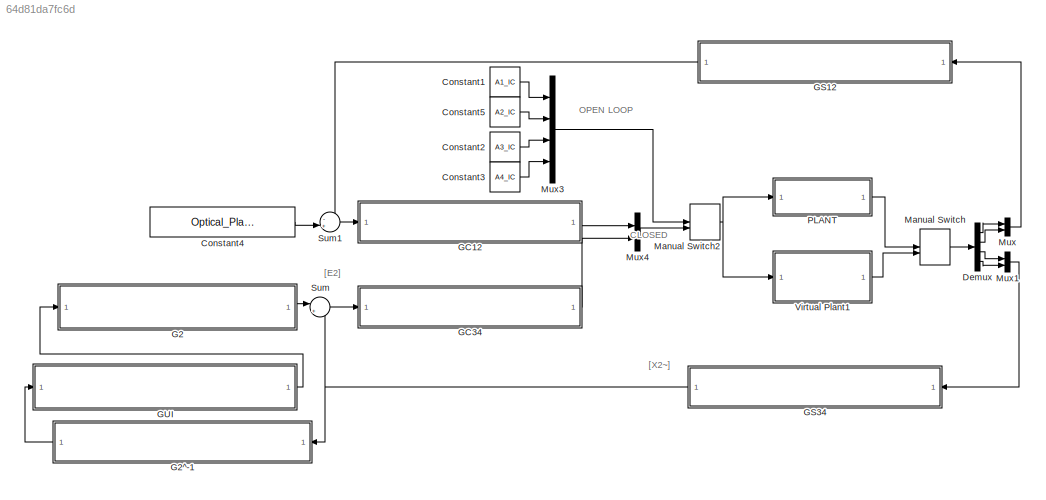
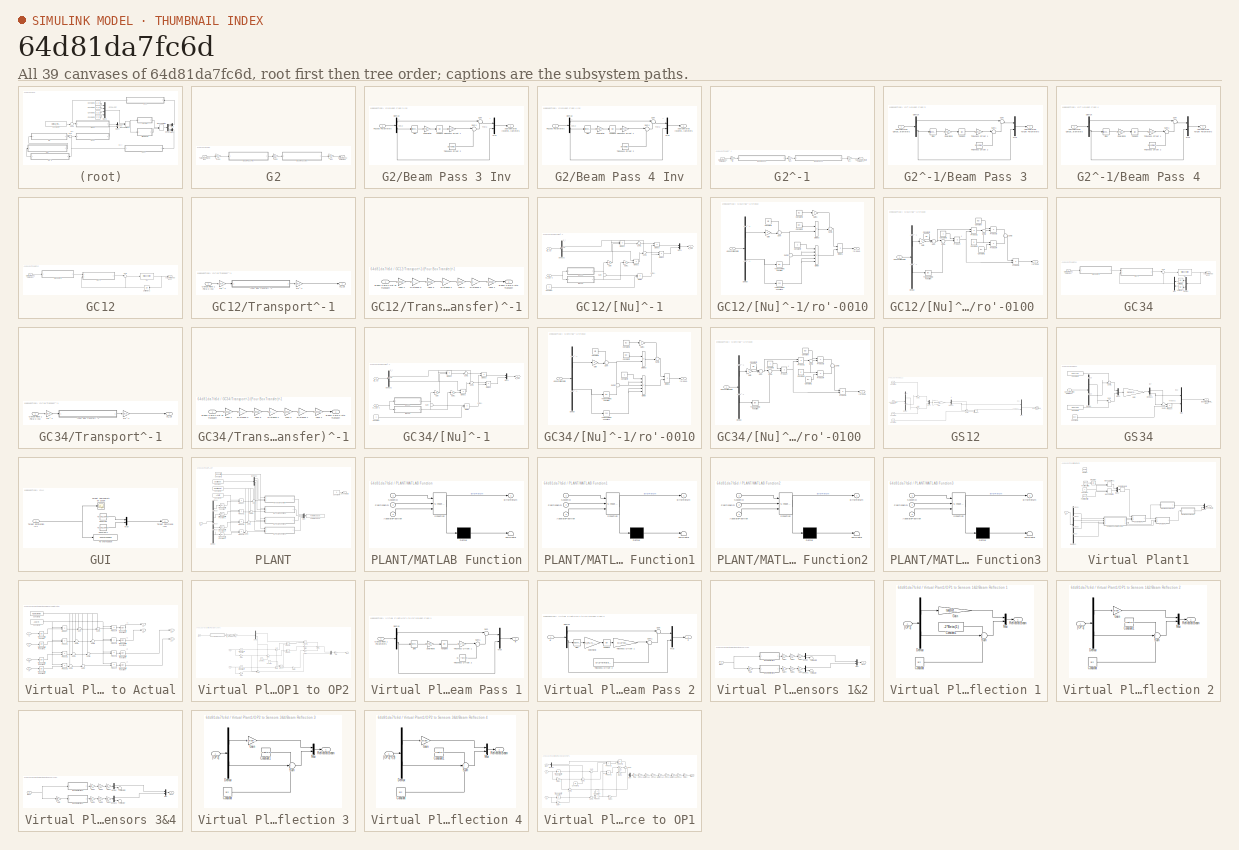
[diagram: thumbnail index - all 39 canvases of the model, root first then tree order]
MODEL slx_64d81da7fc6d
KIND model
CONFIG AbsTol = auto
CONFIG FixedStep = SampleTime
CONFIG MaxStep = auto
CONFIG MinStep = auto
CONFIG RelTol = 1e-3
CONFIG SampleTimeConstraint = Unconstrained
CONFIG Solver = FixedStepAuto
CONFIG SolverMode = Auto
CONFIG SolverName = FixedStepAuto
CONFIG StartTime = 0.0
CONFIG StopTime = EndTime
BLOCK [Constant] Constant1
  Value = A1_IC
BLOCK [Constant] Constant2
  Value = A3_IC
BLOCK [Constant] Constant3
  Value = A4_IC
BLOCK [Constant] Constant4
  Value = Optical_Plane_1_Command
BLOCK [Constant] Constant5
  Value = A2_IC
BLOCK [Demux] Demux
  DisplayOption = bar
  Ports = [1, 4]
BLOCK [SubSystem] G2
  Ports = [1, 1]
  RequestExecContextInheritance = off
  Variant = off
BLOCK [SubSystem] G2/Beam Pass 3 Inv
  Ports = [1, 1]
  RequestExecContextInheritance = off
  Variant = off
BLOCK [Outport] G2/Beam Pass 3 Inv/Approximated Incoming Parameters 
  IconDisplay = Port number
BLOCK [Demux] G2/Beam Pass 3 Inv/Demux
  DisplayOption = bar
  Outputs = 2
  Ports = [1, 2]
BLOCK [Mux] G2/Beam Pass 3 Inv/Mux
  DisplayOption = bar
  Inputs = 2
  Ports = [2, 1]
BLOCK [Inport] G2/Beam Pass 3 Inv/Passed Parameters
  IconDisplay = Port number
BLOCK [Trigonometry] G2/Beam Pass 3 Inv/Sine
  Ports = [1, 1]
BLOCK [Gain] G2/Beam Pass 3 Inv/Snell Ratio
  Gain = n_FS/n_BS
  Multiplication = Matrix(K*u)
  OutDataTypeStr = Inherit: Inherit via internal rule
  ParamDataTypeStr = Inherit: Inherit via internal rule
  SaturateOnIntegerOverflow = off
BLOCK [Sum] G2/Beam Pass 3 Inv/Sum
  IconShape = round
  InputSameDT = off
  Inputs = |+-
  OutDataTypeStr = Inherit: Inherit via internal rule
  Ports = [2, 1]
  SaturateOnIntegerOverflow = off
BLOCK [Sum] G2/Beam Pass 3 Inv/Sum1
  IconShape = round
  InputSameDT = off
  Inputs = |+-
  OutDataTypeStr = Inherit: Inherit via internal rule
  Ports = [2, 1]
  SaturateOnIntegerOverflow = off
BLOCK [Trigonometry] G2/Beam Pass 3 Inv/Tangent
  Operator = tan
  Ports = [1, 1]
BLOCK [Gain] G2/Beam Pass 3 Inv/Thickness Offset 1
  Gain = D(3)*cos(Beta(3))
  OutDataTypeStr = Inherit: Inherit via internal rule
  ParamDataTypeStr = Inherit: Inherit via internal rule
  SaturateOnIntegerOverflow = off
BLOCK [Constant] G2/Beam Pass 3 Inv/Thickness Offset 2
  Value = D(3)*sin(Beta(3))
BLOCK [SubSystem] G2/Beam Pass 4 Inv
  Ports = [1, 1]
  RequestExecContextInheritance = off
  Variant = off
BLOCK [Outport] G2/Beam Pass 4 Inv/Approximated Incoming Parameters 
  IconDisplay = Port number
BLOCK [Demux] G2/Beam Pass 4 Inv/Demux
  DisplayOption = bar
  Outputs = 2
  Ports = [1, 2]
BLOCK [Mux] G2/Beam Pass 4 Inv/Mux
  DisplayOption = bar
  Inputs = 2
  Ports = [2, 1]
BLOCK [Inport] G2/Beam Pass 4 Inv/Passed Parameters
  IconDisplay = Port number
BLOCK [Trigonometry] G2/Beam Pass 4 Inv/Sine
  Ports = [1, 1]
BLOCK [Gain] G2/Beam Pass 4 Inv/Snell Ratio
  Gain = n_FS/n_BS
  OutDataTypeStr = Inherit: Inherit via internal rule
  ParamDataTypeStr = Inherit: Inherit via internal rule
  SaturateOnIntegerOverflow = off
BLOCK [Sum] G2/Beam Pass 4 Inv/Sum
  IconShape = round
  InputSameDT = off
  Inputs = |+-
  OutDataTypeStr = Inherit: Inherit via internal rule
  Ports = [2, 1]
  SaturateOnIntegerOverflow = off
BLOCK [Sum] G2/Beam Pass 4 Inv/Sum1
  IconShape = round
  InputSameDT = off
  Inputs = |+-
  OutDataTypeStr = Inherit: Inherit via internal rule
  Ports = [2, 1]
  SaturateOnIntegerOverflow = off
BLOCK [Trigonometry] G2/Beam Pass 4 Inv/Tangent
  Operator = tan
  Ports = [1, 1]
BLOCK [Gain] G2/Beam Pass 4 Inv/Thickness Offset 1
  Gain = D(4)*cos(Beta(4))
  OutDataTypeStr = Inherit: Inherit via internal rule
  ParamDataTypeStr = Inherit: Inherit via internal rule
  SaturateOnIntegerOverflow = off
BLOCK [Constant] G2/Beam Pass 4 Inv/Thickness Offset 2
  Value = D(4)*sin(Beta(4))
BLOCK [Outport] G2/Optical Plane 2 Para.s [X2]
  IconDisplay = Port number
BLOCK [Inport] G2/Target Command [Tc]
  IconDisplay = Port number
BLOCK [Gain] G2/l10 inv
  Gain = ([1 d(10); 0 1])^-1
  Multiplication = Matrix(K*u)
  OutDataTypeStr = Inherit: Inherit via internal rule
  ParamDataTypeStr = Inherit: Inherit via internal rule
  SaturateOnIntegerOverflow = off
BLOCK [Gain] G2/l11 inv
  Gain = ([1 d(11); 0 1])^-1
  Multiplication = Matrix(K*u)
  OutDataTypeStr = Inherit: Inherit via internal rule
  ParamDataTypeStr = Inherit: Inherit via internal rule
  SaturateOnIntegerOverflow = off
BLOCK [Gain] G2/l9 inv
  Gain = ([1 d(9); 0 1])^-1
  Multiplication = Matrix(K*u)
  OutDataTypeStr = Inherit: Inherit via internal rule
  ParamDataTypeStr = Inherit: Inherit via internal rule
  SaturateOnIntegerOverflow = off
BLOCK [SubSystem] G2^-1
  Ports = [1, 1]
  RequestExecContextInheritance = off
  Variant = off
BLOCK [SubSystem] G2^-1/Beam Pass 3
  Ports = [1, 1]
  RequestExecContextInheritance = off
  Variant = off
BLOCK [Inport] G2^-1/Beam Pass 3/Approximated Optical Plane 2 Parameters
  IconDisplay = Port number
BLOCK [Outport] G2^-1/Beam Pass 3/Approximated Target Parameters 
  IconDisplay = Port number
BLOCK [Demux] G2^-1/Beam Pass 3/Demux
  DisplayOption = bar
  Outputs = 2
  Ports = [1, 2]
BLOCK [Mux] G2^-1/Beam Pass 3/Mux
  DisplayOption = bar
  Inputs = 2
  Ports = [2, 1]
BLOCK [Trigonometry] G2^-1/Beam Pass 3/Sine
  Ports = [1, 1]
BLOCK [Gain] G2^-1/Beam Pass 3/Snell Ratio
  Gain = n_FS/n_BS
  OutDataTypeStr = Inherit: Inherit via internal rule
  ParamDataTypeStr = Inherit: Inherit via internal rule
  SaturateOnIntegerOverflow = off
BLOCK [Sum] G2^-1/Beam Pass 3/Sum
  IconShape = round
  InputSameDT = off
  Inputs = |++
  OutDataTypeStr = Inherit: Inherit via internal rule
  Ports = [2, 1]
  SaturateOnIntegerOverflow = off
BLOCK [Sum] G2^-1/Beam Pass 3/Sum1
  IconShape = round
  InputSameDT = off
  Inputs = |+-
  OutDataTypeStr = Inherit: Inherit via internal rule
  Ports = [2, 1]
  SaturateOnIntegerOverflow = off
BLOCK [Trigonometry] G2^-1/Beam Pass 3/Tangent
  Operator = tan
  Ports = [1, 1]
BLOCK [Gain] G2^-1/Beam Pass 3/Thickness Offset 1
  Gain = D(3)*cos(Beta(3))
  OutDataTypeStr = Inherit: Inherit via internal rule
  ParamDataTypeStr = Inherit: Inherit via internal rule
  SaturateOnIntegerOverflow = off
BLOCK [Constant] G2^-1/Beam Pass 3/Thickness Offset 2
  Value = D(3)*sin(Beta(3))
BLOCK [SubSystem] G2^-1/Beam Pass 4
  Ports = [1, 1]
  RequestExecContextInheritance = off
  Variant = off
BLOCK [Inport] G2^-1/Beam Pass 4/Approximated Optical Plane 2 Parameters
  IconDisplay = Port number
BLOCK [Outport] G2^-1/Beam Pass 4/Approximated Target Parameters 
  IconDisplay = Port number
BLOCK [Demux] G2^-1/Beam Pass 4/Demux
  DisplayOption = bar
  Outputs = 2
  Ports = [1, 2]
BLOCK [Mux] G2^-1/Beam Pass 4/Mux
  DisplayOption = bar
  Inputs = 2
  Ports = [2, 1]
BLOCK [Trigonometry] G2^-1/Beam Pass 4/Sine
  Ports = [1, 1]
BLOCK [Gain] G2^-1/Beam Pass 4/Snell Ratio
  Gain = n_FS/n_BS
  OutDataTypeStr = Inherit: Inherit via internal rule
  ParamDataTypeStr = Inherit: Inherit via internal rule
  SaturateOnIntegerOverflow = off
BLOCK [Sum] G2^-1/Beam Pass 4/Sum
  IconShape = round
  InputSameDT = off
  Inputs = |++
  OutDataTypeStr = Inherit: Inherit via internal rule
  Ports = [2, 1]
  SaturateOnIntegerOverflow = off
BLOCK [Sum] G2^-1/Beam Pass 4/Sum1
  IconShape = round
  InputSameDT = off
  Inputs = |+-
  OutDataTypeStr = Inherit: Inherit via internal rule
  Ports = [2, 1]
  SaturateOnIntegerOverflow = off
BLOCK [Trigonometry] G2^-1/Beam Pass 4/Tangent
  Operator = tan
  Ports = [1, 1]
BLOCK [Gain] G2^-1/Beam Pass 4/Thickness Offset 1
  Gain = D(4)*cos(Beta(4))
  OutDataTypeStr = Inherit: Inherit via internal rule
  ParamDataTypeStr = Inherit: Inherit via internal rule
  SaturateOnIntegerOverflow = off
BLOCK [Constant] G2^-1/Beam Pass 4/Thickness Offset 2
  Value = D(4)*sin(Beta(4))
BLOCK [Inport] G2^-1/Optical Plane 2 Para.s [X2]
  IconDisplay = Port number
BLOCK [Outport] G2^-1/Target Approximate Para.s [T~]
  IconDisplay = Port number
BLOCK [Gain] G2^-1/l(10)
  Gain = ([1 d(10); 0 1])
  Multiplication = Matrix(K*u)
  OutDataTypeStr = Inherit: Inherit via internal rule
  ParamDataTypeStr = Inherit: Inherit via internal rule
  SaturateOnIntegerOverflow = off
BLOCK [Gain] G2^-1/l(11)
  Gain = ([1 d(11); 0 1])
  Multiplication = Matrix(K*u)
  OutDataTypeStr = Inherit: Inherit via internal rule
  ParamDataTypeStr = Inherit: Inherit via internal rule
  SaturateOnIntegerOverflow = off
BLOCK [Gain] G2^-1/l(9)
  Gain = ([1 d(9); 0 1])
  Multiplication = Matrix(K*u)
  OutDataTypeStr = Inherit: Inherit via internal rule
  ParamDataTypeStr = Inherit: Inherit via internal rule
  SaturateOnIntegerOverflow = off
BLOCK [SubSystem] GC12
  Ports = [1, 1]
  RequestExecContextInheritance = off
  Variant = off
BLOCK [Outport] GC12/Act. Commands [A12]
  IconDisplay = Port number
BLOCK [InitialCondition] GC12/IC2
  Value = [A1_IC A2_IC]
BLOCK [Inport] GC12/Optical Plane 1 Para.s [X1]
  IconDisplay = Port number
BLOCK [Sum] GC12/Sum
  IconShape = round
  InputSameDT = off
  Inputs = |++
  OutDataTypeStr = Inherit: Inherit via internal rule
  Ports = [2, 1]
  SaturateOnIntegerOverflow = off
BLOCK [SubSystem] GC12/Transport^-1
  Ports = [1, 1]
  RequestExecContextInheritance = off
  Variant = off
BLOCK [SubSystem] GC12/Transport^-1/(Four Box Transfer)^-1
  Ports = [1, 1]
  RequestExecContextInheritance = off
  Variant = off
BLOCK [Inport] GC12/Transport^-1/(Four Box Transfer)^-1/Beam Para.s Out of Transport
  IconDisplay = Port number
BLOCK [Outport] GC12/Transport^-1/(Four Box Transfer)^-1/Beam Para.s into Transport
  IconDisplay = Port number
BLOCK [Gain] GC12/Transport^-1/(Four Box Transfer)^-1/Distance 1
  Gain = Td(:,:,1)^-1
  Multiplication = Matrix(K*u)
  OutDataTypeStr = Inherit: Inherit via internal rule
  ParamDataTypeStr = Inherit: Inherit via internal rule
  SaturateOnIntegerOverflow = off
BLOCK [Gain] GC12/Transport^-1/(Four Box Transfer)^-1/Distance 2
  Gain = Td(:,:,2)^-1
  Multiplication = Matrix(K*u)
  OutDataTypeStr = Inherit: Inherit via internal rule
  ParamDataTypeStr = Inherit: Inherit via internal rule
  SaturateOnIntegerOverflow = off
BLOCK [Gain] GC12/Transport^-1/(Four Box Transfer)^-1/Distance 3
  Gain = Td(:,:,3)^-1
  Multiplication = Matrix(K*u)
  OutDataTypeStr = Inherit: Inherit via internal rule
  ParamDataTypeStr = Inherit: Inherit via internal rule
  SaturateOnIntegerOverflow = off
BLOCK [Gain] GC12/Transport^-1/(Four Box Transfer)^-1/Lens 1
  Gain = TLense(:,:,1)^-1
  Multiplication = Matrix(K*u)
  OutDataTypeStr = Inherit: Inherit via internal rule
  ParamDataTypeStr = Inherit: Inherit via internal rule
  SaturateOnIntegerOverflow = off
BLOCK [Gain] GC12/Transport^-1/(Four Box Transfer)^-1/Lens 2
  Gain = TLense(:,:,2)^-1
  Multiplication = Matrix(K*u)
  OutDataTypeStr = Inherit: Inherit via internal rule
  ParamDataTypeStr = Inherit: Inherit via internal rule
  SaturateOnIntegerOverflow = off
BLOCK [Gain] GC12/Transport^-1/(Four Box Transfer)^-1/Lens 3
  Gain = TLense(:,:,3)^-1
  Multiplication = Matrix(K*u)
  OutDataTypeStr = Inherit: Inherit via internal rule
  ParamDataTypeStr = Inherit: Inherit via internal rule
  SaturateOnIntegerOverflow = off
BLOCK [Gain] GC12/Transport^-1/(Four Box Transfer)^-1/Lens 4
  Gain = TLense(:,:,4)^-1
  Multiplication = Matrix(K*u)
  OutDataTypeStr = Inherit: Inherit via internal rule
  ParamDataTypeStr = Inherit: Inherit via internal rule
  SaturateOnIntegerOverflow = off
BLOCK [Inport] GC12/Transport^-1/Optical Plane 1 Para.s [X1]
  IconDisplay = Port number
BLOCK [Outport] GC12/Transport^-1/[E_A2']
  IconDisplay = Port number
BLOCK [Gain] GC12/Transport^-1/l(3)^-1
  Gain = ([1 d(3); 0 1])^-1
  Multiplication = Matrix(K*u)
  OutDataTypeStr = Inherit: Inherit via internal rule
  ParamDataTypeStr = Inherit: Inherit via internal rule
  SaturateOnIntegerOverflow = off
BLOCK [Gain] GC12/Transport^-1/l(5)^-1
  Gain = ([1 d(5); 0 1])^-1
  Multiplication = Matrix(K*u)
  OutDataTypeStr = Inherit: Inherit via internal rule
  ParamDataTypeStr = Inherit: Inherit via internal rule
  SaturateOnIntegerOverflow = off
BLOCK [UnitDelay] GC12/Unit Delay2
  InitialCondition = [A1_IC A2_IC]
  InputProcessing = Elements as channels (sample based)
  SampleTime = SampleTime
BLOCK [SubSystem] GC12/[Nu]^-1
  Ports = [2, 1]
  RequestExecContextInheritance = off
  Variant = off
BLOCK [Constant] GC12/[Nu]^-1/Constant
BLOCK [Demux] GC12/[Nu]^-1/Demux2
  DisplayOption = bar
  Outputs = 2
  Ports = [1, 2]
BLOCK [Product] GC12/[Nu]^-1/Divide
  InputSameDT = off
  Inputs = /*
  OutDataTypeStr = Inherit: Inherit via internal rule
  Ports = [2, 1]
  RndMeth = Floor
  SaturateOnIntegerOverflow = off
BLOCK [Product] GC12/[Nu]^-1/Divide1
  InputSameDT = off
  Inputs = **
  OutDataTypeStr = Inherit: Inherit via internal rule
  Ports = [2, 1]
  RndMeth = Floor
  SaturateOnIntegerOverflow = off
BLOCK [Product] GC12/[Nu]^-1/Divide2
  InputSameDT = off
  Inputs = **
  OutDataTypeStr = Inherit: Inherit via internal rule
  Ports = [2, 1]
  RndMeth = Floor
  SaturateOnIntegerOverflow = off
BLOCK [Product] GC12/[Nu]^-1/Divide3
  InputSameDT = off
  Inputs = **
  OutDataTypeStr = Inherit: Inherit via internal rule
  Ports = [2, 1]
  RndMeth = Floor
  SaturateOnIntegerOverflow = off
BLOCK [Product] GC12/[Nu]^-1/Divide4
  InputSameDT = off
  Inputs = **
  OutDataTypeStr = Inherit: Inherit via internal rule
  Ports = [2, 1]
  RndMeth = Floor
  SaturateOnIntegerOverflow = off
BLOCK [Gain] GC12/[Nu]^-1/Gain
  Gain = 1/2
  OutDataTypeStr = Inherit: Inherit via internal rule
  ParamDataTypeStr = Inherit: Inherit via internal rule
  SaturateOnIntegerOverflow = off
BLOCK [Gain] GC12/[Nu]^-1/Gain1
  Gain = 1/2
  OutDataTypeStr = Inherit: Inherit via internal rule
  ParamDataTypeStr = Inherit: Inherit via internal rule
  SaturateOnIntegerOverflow = off
BLOCK [Mux] GC12/[Nu]^-1/Mux1
  DisplayOption = bar
  Inputs = 2
  Ports = [2, 1]
BLOCK [Sum] GC12/[Nu]^-1/Sum
  IconShape = round
  InputSameDT = off
  Inputs = +|+
  OutDataTypeStr = Inherit: Inherit via internal rule
  Ports = [2, 1]
  SaturateOnIntegerOverflow = off
BLOCK [Sum] GC12/[Nu]^-1/Sum1
  IconShape = round
  InputSameDT = off
  Inputs = +-|
  OutDataTypeStr = Inherit: Inherit via internal rule
  Ports = [2, 1]
  SaturateOnIntegerOverflow = off
BLOCK [Sum] GC12/[Nu]^-1/Sum2
  IconShape = round
  InputSameDT = off
  Inputs = ++|
  OutDataTypeStr = Inherit: Inherit via internal rule
  Ports = [2, 1]
  SaturateOnIntegerOverflow = off
BLOCK [Outport] GC12/[Nu]^-1/[A_12]
  IconDisplay = Port number
BLOCK [Inport] GC12/[Nu]^-1/[A_12]z^-1
  IconDisplay = Port number
  Port = 2
BLOCK [Inport] GC12/[Nu]^-1/[E_A2']
  IconDisplay = Port number
BLOCK [SubSystem] GC12/[Nu]^-1/ro'-0010
  Ports = [1, 1]
  RequestExecContextInheritance = off
  Variant = off
BLOCK [Constant] GC12/[Nu]^-1/ro'-0010/Constant1
  Value = pi/2
BLOCK [Constant] GC12/[Nu]^-1/ro'-0010/Constant2
  Value = d(2)
BLOCK [Constant] GC12/[Nu]^-1/ro'-0010/Constant3
  Value = t12
BLOCK [Constant] GC12/[Nu]^-1/ro'-0010/Constant4
BLOCK [Demux] GC12/[Nu]^-1/ro'-0010/Demux
  DisplayOption = bar
  Outputs = 2
  Ports = [1, 2]
BLOCK [Product] GC12/[Nu]^-1/ro'-0010/Divide
  InputSameDT = off
  Inputs = *////
  OutDataTypeStr = Inherit: Inherit via internal rule
  Ports = [5, 1]
  RndMeth = Floor
  SaturateOnIntegerOverflow = off
BLOCK [Product] GC12/[Nu]^-1/ro'-0010/Divide1
  InputSameDT = off
  Inputs = **
  OutDataTypeStr = Inherit: Inherit via internal rule
  Ports = [2, 1]
  RndMeth = Floor
  SaturateOnIntegerOverflow = off
BLOCK [Product] GC12/[Nu]^-1/ro'-0010/Divide3
  InputSameDT = off
  Inputs = **
  OutDataTypeStr = Inherit: Inherit via internal rule
  Ports = [2, 1]
  RndMeth = Floor
  SaturateOnIntegerOverflow = off
BLOCK [Gain] GC12/[Nu]^-1/ro'-0010/Gain
  Gain = -2
  OutDataTypeStr = Inherit: Inherit via internal rule
  ParamDataTypeStr = Inherit: Inherit via internal rule
  SaturateOnIntegerOverflow = off
BLOCK [Gain] GC12/[Nu]^-1/ro'-0010/Gain1
  Gain = -1
  OutDataTypeStr = Inherit: Inherit via internal rule
  ParamDataTypeStr = Inherit: Inherit via internal rule
  SaturateOnIntegerOverflow = off
BLOCK [Inport] GC12/[Nu]^-1/ro'-0010/Linearization Data
  IconDisplay = Port number
BLOCK [Sum] GC12/[Nu]^-1/ro'-0010/Sum
  IconShape = round
  InputSameDT = off
  Inputs = ++|
  OutDataTypeStr = Inherit: Inherit via internal rule
  Ports = [2, 1]
  SaturateOnIntegerOverflow = off
BLOCK [Sum] GC12/[Nu]^-1/ro'-0010/Sum2
  IconShape = round
  InputSameDT = off
  Inputs = +|+
  OutDataTypeStr = Inherit: Inherit via internal rule
  Ports = [2, 1]
  SaturateOnIntegerOverflow = off
BLOCK [Sum] GC12/[Nu]^-1/ro'-0010/Sum3
  IconShape = round
  InputSameDT = off
  Inputs = ++|
  OutDataTypeStr = Inherit: Inherit via internal rule
  Ports = [2, 1]
  SaturateOnIntegerOverflow = off
BLOCK [Trigonometry] GC12/[Nu]^-1/ro'-0010/Trigonometric Function
  Operator = tan
  Ports = [1, 1]
BLOCK [Trigonometry] GC12/[Nu]^-1/ro'-0010/Trigonometric Function2
  Operator = cos
  Ports = [1, 1]
BLOCK [Outport] GC12/[Nu]^-1/ro'-0010/ro'-0010
  IconDisplay = Port number
BLOCK [SubSystem] GC12/[Nu]^-1/ro'-0100 
  Ports = [1, 1]
  RequestExecContextInheritance = off
  Variant = off
BLOCK [Constant] GC12/[Nu]^-1/ro'-0100 /Constant
  Value = d(2)
BLOCK [Constant] GC12/[Nu]^-1/ro'-0100 /Constant1
  Value = t12
BLOCK [Constant] GC12/[Nu]^-1/ro'-0100 /Constant2
  Value = pi/2
BLOCK [Constant] GC12/[Nu]^-1/ro'-0100 /Constant3
BLOCK [Constant] GC12/[Nu]^-1/ro'-0100 /Constant4
  Value = -2
BLOCK [Demux] GC12/[Nu]^-1/ro'-0100 /Demux
  DisplayOption = bar
  Outputs = 2
  Ports = [1, 2]
BLOCK [Gain] GC12/[Nu]^-1/ro'-0100 /Gain
  Gain = -2
  OutDataTypeStr = Inherit: Inherit via internal rule
  ParamDataTypeStr = Inherit: Inherit via internal rule
  SaturateOnIntegerOverflow = off
BLOCK [Inport] GC12/[Nu]^-1/ro'-0100 /Linearization Data
  IconDisplay = Port number
BLOCK [Product] GC12/[Nu]^-1/ro'-0100 /Product
  InputSameDT = off
  Inputs = */
  OutDataTypeStr = Inherit: Inherit via internal rule
  Ports = [2, 1]
  RndMeth = Floor
  SaturateOnIntegerOverflow = off
BLOCK [Product] GC12/[Nu]^-1/ro'-0100 /Product1
  InputSameDT = off
  Inputs = **
  OutDataTypeStr = Inherit: Inherit via internal rule
  Ports = [2, 1]
  RndMeth = Floor
  SaturateOnIntegerOverflow = off
BLOCK [Product] GC12/[Nu]^-1/ro'-0100 /Product2
  InputSameDT = off
  Inputs = **
  OutDataTypeStr = Inherit: Inherit via internal rule
  Ports = [2, 1]
  RndMeth = Floor
  SaturateOnIntegerOverflow = off
BLOCK [Product] GC12/[Nu]^-1/ro'-0100 /Product3
  InputSameDT = off
  Inputs = **
  OutDataTypeStr = Inherit: Inherit via internal rule
  Ports = [2, 1]
  RndMeth = Floor
  SaturateOnIntegerOverflow = off
BLOCK [Product] GC12/[Nu]^-1/ro'-0100 /Product4
  InputSameDT = off
  Inputs = **
  OutDataTypeStr = Inherit: Inherit via internal rule
  Ports = [2, 1]
  RndMeth = Floor
  SaturateOnIntegerOverflow = off
BLOCK [Sum] GC12/[Nu]^-1/ro'-0100 /Sum
  IconShape = round
  InputSameDT = off
  Inputs = ++|
  OutDataTypeStr = Inherit: Inherit via internal rule
  Ports = [2, 1]
  SaturateOnIntegerOverflow = off
BLOCK [Sum] GC12/[Nu]^-1/ro'-0100 /Sum1
  IconShape = round
  InputSameDT = off
  Inputs = |++
  OutDataTypeStr = Inherit: Inherit via internal rule
  Ports = [2, 1]
  SaturateOnIntegerOverflow = off
BLOCK [Sum] GC12/[Nu]^-1/ro'-0100 /Sum2
  IconShape = round
  InputSameDT = off
  Inputs = |++
  OutDataTypeStr = Inherit: Inherit via internal rule
  Ports = [2, 1]
  SaturateOnIntegerOverflow = off
BLOCK [Sum] GC12/[Nu]^-1/ro'-0100 /Sum3
  IconShape = round
  InputSameDT = off
  Inputs = +|+
  OutDataTypeStr = Inherit: Inherit via internal rule
  Ports = [2, 1]
  SaturateOnIntegerOverflow = off
BLOCK [Trigonometry] GC12/[Nu]^-1/ro'-0100 /Trigonometric Function
  Operator = tan
  Ports = [1, 1]
BLOCK [Outport] GC12/[Nu]^-1/ro'-0100 /ro'-0100
  IconDisplay = Port number
BLOCK [SubSystem] GC34
  Ports = [1, 1]
  RequestExecContextInheritance = off
  Variant = off
BLOCK [Outport] GC34/Act. Commands [A34]
  IconDisplay = Port number
BLOCK [Demux] GC34/Demux
  DisplayOption = bar
  Outputs = 2
  Ports = [1, 2]
BLOCK [InitialCondition] GC34/IC2
  Value = [A1_IC A2_IC]
BLOCK [Mux] GC34/Mux
  DisplayOption = bar
  Inputs = 2
  Ports = [2, 1]
BLOCK [Inport] GC34/Optical Plane 1 Para.s [X1]
  IconDisplay = Port number
BLOCK [Sum] GC34/Sum
  IconShape = round
  InputSameDT = off
  Inputs = |++
  OutDataTypeStr = Inherit: Inherit via internal rule
  Ports = [2, 1]
  SaturateOnIntegerOverflow = off
BLOCK [SubSystem] GC34/Transport^-1
  Ports = [1, 1]
  RequestExecContextInheritance = off
  Variant = off
BLOCK [SubSystem] GC34/Transport^-1/(Four Box Transfer)^-1
  Ports = [1, 1]
  RequestExecContextInheritance = off
  Variant = off
BLOCK [Inport] GC34/Transport^-1/(Four Box Transfer)^-1/Beam Para.s Out of Transport
  IconDisplay = Port number
BLOCK [Outport] GC34/Transport^-1/(Four Box Transfer)^-1/Beam Para.s into Transport
  IconDisplay = Port number
BLOCK [Gain] GC34/Transport^-1/(Four Box Transfer)^-1/Distance 1
  Gain = Td(:,:,1)^-1
  Multiplication = Matrix(K*u)
  OutDataTypeStr = Inherit: Inherit via internal rule
  ParamDataTypeStr = Inherit: Inherit via internal rule
  SaturateOnIntegerOverflow = off
BLOCK [Gain] GC34/Transport^-1/(Four Box Transfer)^-1/Distance 2
  Gain = Td(:,:,2)^-1
  Multiplication = Matrix(K*u)
  OutDataTypeStr = Inherit: Inherit via internal rule
  ParamDataTypeStr = Inherit: Inherit via internal rule
  SaturateOnIntegerOverflow = off
BLOCK [Gain] GC34/Transport^-1/(Four Box Transfer)^-1/Distance 3
  Gain = Td(:,:,3)^-1
  Multiplication = Matrix(K*u)
  OutDataTypeStr = Inherit: Inherit via internal rule
  ParamDataTypeStr = Inherit: Inherit via internal rule
  SaturateOnIntegerOverflow = off
BLOCK [Gain] GC34/Transport^-1/(Four Box Transfer)^-1/Lens 1
  Gain = TLense(:,:,1)^-1
  Multiplication = Matrix(K*u)
  OutDataTypeStr = Inherit: Inherit via internal rule
  ParamDataTypeStr = Inherit: Inherit via internal rule
  SaturateOnIntegerOverflow = off
BLOCK [Gain] GC34/Transport^-1/(Four Box Transfer)^-1/Lens 2
  Gain = TLense(:,:,2)^-1
  Multiplication = Matrix(K*u)
  OutDataTypeStr = Inherit: Inherit via internal rule
  ParamDataTypeStr = Inherit: Inherit via internal rule
  SaturateOnIntegerOverflow = off
BLOCK [Gain] GC34/Transport^-1/(Four Box Transfer)^-1/Lens 3
  Gain = TLense(:,:,3)^-1
  Multiplication = Matrix(K*u)
  OutDataTypeStr = Inherit: Inherit via internal rule
  ParamDataTypeStr = Inherit: Inherit via internal rule
  SaturateOnIntegerOverflow = off
BLOCK [Gain] GC34/Transport^-1/(Four Box Transfer)^-1/Lens 4
  Gain = TLense(:,:,4)^-1
  Multiplication = Matrix(K*u)
  OutDataTypeStr = Inherit: Inherit via internal rule
  ParamDataTypeStr = Inherit: Inherit via internal rule
  SaturateOnIntegerOverflow = off
BLOCK [Inport] GC34/Transport^-1/Optical Plane 1 Para.s [X1]
  IconDisplay = Port number
BLOCK [Outport] GC34/Transport^-1/[E_A2']
  IconDisplay = Port number
BLOCK [Gain] GC34/Transport^-1/l(3)^-1
  Gain = ([1 d(3); 0 1])^-1
  Multiplication = Matrix(K*u)
  OutDataTypeStr = Inherit: Inherit via internal rule
  ParamDataTypeStr = Inherit: Inherit via internal rule
  SaturateOnIntegerOverflow = off
BLOCK [Gain] GC34/Transport^-1/l(5)^-1
  Gain = ([1 d(5); 0 1])^-1
  Multiplication = Matrix(K*u)
  OutDataTypeStr = Inherit: Inherit via internal rule
  ParamDataTypeStr = Inherit: Inherit via internal rule
  SaturateOnIntegerOverflow = off
BLOCK [UnitDelay] GC34/Unit Delay
  InitialCondition = A1_IC
  InputProcessing = Elements as channels (sample based)
  SampleTime = SampleTime
BLOCK [UnitDelay] GC34/Unit Delay1
  InitialCondition = A2_IC
  InputProcessing = Elements as channels (sample based)
  SampleTime = SampleTime
BLOCK [SubSystem] GC34/[Nu]^-1
  Ports = [2, 1]
  RequestExecContextInheritance = off
  Variant = off
BLOCK [Constant] GC34/[Nu]^-1/Constant
BLOCK [Demux] GC34/[Nu]^-1/Demux2
  DisplayOption = bar
  Outputs = 2
  Ports = [1, 2]
BLOCK [Product] GC34/[Nu]^-1/Divide
  InputSameDT = off
  Inputs = /*
  OutDataTypeStr = Inherit: Inherit via internal rule
  Ports = [2, 1]
  RndMeth = Floor
  SaturateOnIntegerOverflow = off
BLOCK [Product] GC34/[Nu]^-1/Divide1
  InputSameDT = off
  Inputs = **
  OutDataTypeStr = Inherit: Inherit via internal rule
  Ports = [2, 1]
  RndMeth = Floor
  SaturateOnIntegerOverflow = off
BLOCK [Product] GC34/[Nu]^-1/Divide2
  InputSameDT = off
  Inputs = **
  OutDataTypeStr = Inherit: Inherit via internal rule
  Ports = [2, 1]
  RndMeth = Floor
  SaturateOnIntegerOverflow = off
BLOCK [Product] GC34/[Nu]^-1/Divide3
  InputSameDT = off
  Inputs = **
  OutDataTypeStr = Inherit: Inherit via internal rule
  Ports = [2, 1]
  RndMeth = Floor
  SaturateOnIntegerOverflow = off
BLOCK [Product] GC34/[Nu]^-1/Divide4
  InputSameDT = off
  Inputs = **
  OutDataTypeStr = Inherit: Inherit via internal rule
  Ports = [2, 1]
  RndMeth = Floor
  SaturateOnIntegerOverflow = off
BLOCK [Gain] GC34/[Nu]^-1/Gain
  Gain = 1/2
  OutDataTypeStr = Inherit: Inherit via internal rule
  ParamDataTypeStr = Inherit: Inherit via internal rule
  SaturateOnIntegerOverflow = off
BLOCK [Gain] GC34/[Nu]^-1/Gain1
  Gain = 1/2
  OutDataTypeStr = Inherit: Inherit via internal rule
  ParamDataTypeStr = Inherit: Inherit via internal rule
  SaturateOnIntegerOverflow = off
BLOCK [Mux] GC34/[Nu]^-1/Mux1
  DisplayOption = bar
  Inputs = 2
  Ports = [2, 1]
BLOCK [Sum] GC34/[Nu]^-1/Sum
  IconShape = round
  InputSameDT = off
  Inputs = +|+
  OutDataTypeStr = Inherit: Inherit via internal rule
  Ports = [2, 1]
  SaturateOnIntegerOverflow = off
BLOCK [Sum] GC34/[Nu]^-1/Sum1
  IconShape = round
  InputSameDT = off
  Inputs = +-|
  OutDataTypeStr = Inherit: Inherit via internal rule
  Ports = [2, 1]
  SaturateOnIntegerOverflow = off
BLOCK [Sum] GC34/[Nu]^-1/Sum2
  IconShape = round
  InputSameDT = off
  Inputs = ++|
  OutDataTypeStr = Inherit: Inherit via internal rule
  Ports = [2, 1]
  SaturateOnIntegerOverflow = off
BLOCK [Outport] GC34/[Nu]^-1/[A_12]
  IconDisplay = Port number
BLOCK [Inport] GC34/[Nu]^-1/[A_12]z^-1
  IconDisplay = Port number
  Port = 2
BLOCK [Inport] GC34/[Nu]^-1/[E_A2']
  IconDisplay = Port number
BLOCK [SubSystem] GC34/[Nu]^-1/ro'-0010
  Ports = [1, 1]
  RequestExecContextInheritance = off
  Variant = off
BLOCK [Constant] GC34/[Nu]^-1/ro'-0010/Constant1
  Value = pi/2
BLOCK [Constant] GC34/[Nu]^-1/ro'-0010/Constant2
  Value = d(2)
BLOCK [Constant] GC34/[Nu]^-1/ro'-0010/Constant3
  Value = t12
BLOCK [Constant] GC34/[Nu]^-1/ro'-0010/Constant4
BLOCK [Demux] GC34/[Nu]^-1/ro'-0010/Demux
  DisplayOption = bar
  Outputs = 2
  Ports = [1, 2]
BLOCK [Product] GC34/[Nu]^-1/ro'-0010/Divide
  InputSameDT = off
  Inputs = *////
  OutDataTypeStr = Inherit: Inherit via internal rule
  Ports = [5, 1]
  RndMeth = Floor
  SaturateOnIntegerOverflow = off
BLOCK [Product] GC34/[Nu]^-1/ro'-0010/Divide1
  InputSameDT = off
  Inputs = **
  OutDataTypeStr = Inherit: Inherit via internal rule
  Ports = [2, 1]
  RndMeth = Floor
  SaturateOnIntegerOverflow = off
BLOCK [Product] GC34/[Nu]^-1/ro'-0010/Divide3
  InputSameDT = off
  Inputs = **
  OutDataTypeStr = Inherit: Inherit via internal rule
  Ports = [2, 1]
  RndMeth = Floor
  SaturateOnIntegerOverflow = off
BLOCK [Gain] GC34/[Nu]^-1/ro'-0010/Gain
  Gain = -2
  OutDataTypeStr = Inherit: Inherit via internal rule
  ParamDataTypeStr = Inherit: Inherit via internal rule
  SaturateOnIntegerOverflow = off
BLOCK [Gain] GC34/[Nu]^-1/ro'-0010/Gain1
  Gain = -1
  OutDataTypeStr = Inherit: Inherit via internal rule
  ParamDataTypeStr = Inherit: Inherit via internal rule
  SaturateOnIntegerOverflow = off
BLOCK [Inport] GC34/[Nu]^-1/ro'-0010/Linearization Data
  IconDisplay = Port number
BLOCK [Sum] GC34/[Nu]^-1/ro'-0010/Sum
  IconShape = round
  InputSameDT = off
  Inputs = ++|
  OutDataTypeStr = Inherit: Inherit via internal rule
  Ports = [2, 1]
  SaturateOnIntegerOverflow = off
BLOCK [Sum] GC34/[Nu]^-1/ro'-0010/Sum2
  IconShape = round
  InputSameDT = off
  Inputs = +|+
  OutDataTypeStr = Inherit: Inherit via internal rule
  Ports = [2, 1]
  SaturateOnIntegerOverflow = off
BLOCK [Sum] GC34/[Nu]^-1/ro'-0010/Sum3
  IconShape = round
  InputSameDT = off
  Inputs = ++|
  OutDataTypeStr = Inherit: Inherit via internal rule
  Ports = [2, 1]
  SaturateOnIntegerOverflow = off
BLOCK [Trigonometry] GC34/[Nu]^-1/ro'-0010/Trigonometric Function
  Operator = tan
  Ports = [1, 1]
BLOCK [Trigonometry] GC34/[Nu]^-1/ro'-0010/Trigonometric Function2
  Operator = cos
  Ports = [1, 1]
BLOCK [Outport] GC34/[Nu]^-1/ro'-0010/ro'-0010
  IconDisplay = Port number
BLOCK [SubSystem] GC34/[Nu]^-1/ro'-0100 
  Ports = [1, 1]
  RequestExecContextInheritance = off
  Variant = off
BLOCK [Constant] GC34/[Nu]^-1/ro'-0100 /Constant
  Value = d(2)
BLOCK [Constant] GC34/[Nu]^-1/ro'-0100 /Constant1
  Value = t12
BLOCK [Constant] GC34/[Nu]^-1/ro'-0100 /Constant2
  Value = pi/2
BLOCK [Constant] GC34/[Nu]^-1/ro'-0100 /Constant3
BLOCK [Constant] GC34/[Nu]^-1/ro'-0100 /Constant4
  Value = -2
BLOCK [Demux] GC34/[Nu]^-1/ro'-0100 /Demux
  DisplayOption = bar
  Outputs = 2
  Ports = [1, 2]
BLOCK [Gain] GC34/[Nu]^-1/ro'-0100 /Gain
  Gain = -2
  OutDataTypeStr = Inherit: Inherit via internal rule
  ParamDataTypeStr = Inherit: Inherit via internal rule
  SaturateOnIntegerOverflow = off
BLOCK [Inport] GC34/[Nu]^-1/ro'-0100 /Linearization Data
  IconDisplay = Port number
BLOCK [Product] GC34/[Nu]^-1/ro'-0100 /Product
  InputSameDT = off
  Inputs = */
  OutDataTypeStr = Inherit: Inherit via internal rule
  Ports = [2, 1]
  RndMeth = Floor
  SaturateOnIntegerOverflow = off
BLOCK [Product] GC34/[Nu]^-1/ro'-0100 /Product1
  InputSameDT = off
  Inputs = **
  OutDataTypeStr = Inherit: Inherit via internal rule
  Ports = [2, 1]
  RndMeth = Floor
  SaturateOnIntegerOverflow = off
BLOCK [Product] GC34/[Nu]^-1/ro'-0100 /Product2
  InputSameDT = off
  Inputs = **
  OutDataTypeStr = Inherit: Inherit via internal rule
  Ports = [2, 1]
  RndMeth = Floor
  SaturateOnIntegerOverflow = off
BLOCK [Product] GC34/[Nu]^-1/ro'-0100 /Product3
  InputSameDT = off
  Inputs = **
  OutDataTypeStr = Inherit: Inherit via internal rule
  Ports = [2, 1]
  RndMeth = Floor
  SaturateOnIntegerOverflow = off
BLOCK [Product] GC34/[Nu]^-1/ro'-0100 /Product4
  InputSameDT = off
  Inputs = **
  OutDataTypeStr = Inherit: Inherit via internal rule
  Ports = [2, 1]
  RndMeth = Floor
  SaturateOnIntegerOverflow = off
BLOCK [Sum] GC34/[Nu]^-1/ro'-0100 /Sum
  IconShape = round
  InputSameDT = off
  Inputs = ++|
  OutDataTypeStr = Inherit: Inherit via internal rule
  Ports = [2, 1]
  SaturateOnIntegerOverflow = off
BLOCK [Sum] GC34/[Nu]^-1/ro'-0100 /Sum1
  IconShape = round
  InputSameDT = off
  Inputs = |++
  OutDataTypeStr = Inherit: Inherit via internal rule
  Ports = [2, 1]
  SaturateOnIntegerOverflow = off
BLOCK [Sum] GC34/[Nu]^-1/ro'-0100 /Sum2
  IconShape = round
  InputSameDT = off
  Inputs = |++
  OutDataTypeStr = Inherit: Inherit via internal rule
  Ports = [2, 1]
  SaturateOnIntegerOverflow = off
BLOCK [Sum] GC34/[Nu]^-1/ro'-0100 /Sum3
  IconShape = round
  InputSameDT = off
  Inputs = +|+
  OutDataTypeStr = Inherit: Inherit via internal rule
  Ports = [2, 1]
  SaturateOnIntegerOverflow = off
BLOCK [Trigonometry] GC34/[Nu]^-1/ro'-0100 /Trigonometric Function
  Operator = tan
  Ports = [1, 1]
BLOCK [Outport] GC34/[Nu]^-1/ro'-0100 /ro'-0100
  IconDisplay = Port number
BLOCK [SubSystem] GS12
  Ports = [1, 1]
  RequestExecContextInheritance = off
  Variant = off
BLOCK [Outport] GS12/Beam Position [X_OP1]
  IconDisplay = Port number
BLOCK [Constant] GS12/Constant1
  Value = b12*c12
BLOCK [Constant] GS12/Constant2
  Value = d(6)
BLOCK [Constant] GS12/Constant6
  Value = g12*h12
BLOCK [Demux] GS12/Demux
  DisplayOption = bar
  Outputs = 2
  Ports = [1, 2]
BLOCK [Demux] GS12/Demux1
  DisplayOption = bar
  Outputs = 2
  Ports = [1, 2]
BLOCK [Gain] GS12/Gain
  Gain = Sensor12Matx^-1
  Multiplication = Matrix(K*u)
  OutDataTypeStr = Inherit: Inherit via internal rule
  ParamDataTypeStr = Inherit: Inherit via internal rule
  SaturateOnIntegerOverflow = off
BLOCK [Mux] GS12/Mux
  DisplayOption = bar
  Inputs = 2
  Ports = [2, 1]
BLOCK [Mux] GS12/Mux1
  DisplayOption = bar
  Inputs = 2
  Ports = [2, 1]
BLOCK [Product] GS12/Product
  InputSameDT = off
  Inputs = */
  OutDataTypeStr = Inherit: Inherit via internal rule
  Ports = [2, 1]
  RndMeth = Floor
  SaturateOnIntegerOverflow = off
BLOCK [Inport] GS12/Sensor Position Data [S12]
  IconDisplay = Port number
BLOCK [Sum] GS12/Sum
  IconShape = round
  InputSameDT = off
  Inputs = |+-
  OutDataTypeStr = Inherit: Inherit via internal rule
  Ports = [2, 1]
  SaturateOnIntegerOverflow = off
BLOCK [Sum] GS12/Sum1
  IconShape = round
  InputSameDT = off
  Inputs = -+|
  OutDataTypeStr = Inherit: Inherit via internal rule
  Ports = [2, 1]
  SaturateOnIntegerOverflow = off
BLOCK [Sum] GS12/Sum2
  IconShape = round
  InputSameDT = off
  Inputs = +-|
  OutDataTypeStr = Inherit: Inherit via internal rule
  Ports = [2, 1]
  SaturateOnIntegerOverflow = off
BLOCK [SubSystem] GS34
  Ports = [1, 1]
  RequestExecContextInheritance = off
  Variant = off
BLOCK [Outport] GS34/Beam Position [X_OP2]
  IconDisplay = Port number
BLOCK [Constant] GS34/Constant1
  Value = b34*c34
BLOCK [Constant] GS34/Constant2
  Value = d(10)
BLOCK [Constant] GS34/Constant6
  Value = g34*h34
BLOCK [Demux] GS34/Demux
  DisplayOption = bar
  Outputs = 2
  Ports = [1, 2]
BLOCK [Demux] GS34/Demux1
  DisplayOption = bar
  Outputs = 2
  Ports = [1, 2]
BLOCK [Gain] GS34/Gain
  Gain = Sensor34Matx^-1
  Multiplication = Matrix(K*u)
  OutDataTypeStr = Inherit: Inherit via internal rule
  ParamDataTypeStr = Inherit: Inherit via internal rule
  SaturateOnIntegerOverflow = off
BLOCK [Mux] GS34/Mux
  DisplayOption = bar
  Inputs = 2
  Ports = [2, 1]
BLOCK [Mux] GS34/Mux1
  DisplayOption = bar
  Inputs = 2
  Ports = [2, 1]
BLOCK [Product] GS34/Product
  InputSameDT = off
  Inputs = */
  OutDataTypeStr = Inherit: Inherit via internal rule
  Ports = [2, 1]
  RndMeth = Floor
  SaturateOnIntegerOverflow = off
BLOCK [Inport] GS34/Sensor Position Data [S34]
  IconDisplay = Port number
BLOCK [Sum] GS34/Sum
  IconShape = round
  InputSameDT = off
  Inputs = |+-
  OutDataTypeStr = Inherit: Inherit via internal rule
  Ports = [2, 1]
  SaturateOnIntegerOverflow = off
BLOCK [Sum] GS34/Sum1
  IconShape = round
  InputSameDT = off
  Inputs = -+|
  OutDataTypeStr = Inherit: Inherit via internal rule
  Ports = [2, 1]
  SaturateOnIntegerOverflow = off
BLOCK [Sum] GS34/Sum2
  IconShape = round
  InputSameDT = off
  Inputs = +-|
  OutDataTypeStr = Inherit: Inherit via internal rule
  Ports = [2, 1]
  SaturateOnIntegerOverflow = off
BLOCK [SubSystem] GUI
  Ports = [1, 1]
  RequestExecContextInheritance = off
  Variant = off
BLOCK [Constant] GUI/Constant
  Value = Target_Command(1)
BLOCK [Constant] GUI/Constant1
  Value = Target_Command(2)
BLOCK [Mux] GUI/Mux
  DisplayOption = bar
  Inputs = 2
  Ports = [2, 1]
BLOCK [Scope] GUI/Target Approximation Scope 
  Ports = [1]
  ScopeSpecificationString = Simulink.scopes.TimeScopeBlockCfg('CurrentConfiguration', extmgr.ConfigurationSet(extmgr.Configuration('Core','General UI',true),extmgr.Configuration('Core','Source UI',true),extmgr.Configuration('Sources','WiredSimulink',true,'DataLoggingLimitDataPoints',true,'DataLoggingSaveFormat','Array','DataLoggingDecimation','1','DataLoggingDecimateData',true),extmgr.Configuration('Visuals','Time Domain',tr...<+1532ch>
BLOCK [Outport] GUI/Target Command [Tc]
  IconDisplay = Port number
BLOCK [Inport] GUI/Target Estimation [T~]
  IconDisplay = Port number
BLOCK [ToWorkspace] GUI/To Workspace
  FixptAsFi = on
  MaxDataPoints = inf
  Ports = [1]
  SampleTime = -1
  Save2DSignal = 3-D array (concatenate along third dimension)
  SaveFormat = Timeseries
  VariableName = Target_Estimation
BLOCK [ManualSwitch] Manual Switch
  CurrentSetting = 0
BLOCK [ManualSwitch] Manual Switch2
  CurrentSetting = 0
BLOCK [Mux] Mux
  DisplayOption = bar
  Inputs = 2
  Ports = [2, 1]
BLOCK [Mux] Mux1
  DisplayOption = bar
  Inputs = 2
  Ports = [2, 1]
BLOCK [Mux] Mux3
  DisplayOption = bar
  Ports = [4, 1]
BLOCK [Mux] Mux4
  DisplayOption = bar
  Inputs = 2
  Ports = [2, 1]
BLOCK [SubSystem] PLANT
  Ports = [1, 1]
  RequestExecContextInheritance = off
  Variant = off
BLOCK [Constant] PLANT/Constant
  Value = positioner
BLOCK [Constant] PLANT/Constant1
  Value = SocketID
BLOCK [Constant] PLANT/Constant2
  Value = NuetralPoint
BLOCK [Constant] PLANT/Constant3
  Value = ActArm
BLOCK [Constant] PLANT/Constant4
BLOCK [Demux] PLANT/Demux
  DisplayOption = bar
  Ports = [1, 4]
BLOCK [Demux] PLANT/Demux2
  DisplayOption = bar
  Ports = [1, 4]
BLOCK [SubSystem] PLANT/MATLAB Function
  ErrorFcn = Stateflow.Translate.translate
  PermitHierarchicalResolution = ExplicitOnly
  Ports = [3, 1]
  RequestExecContextInheritance = off
  SFBlockType = MATLAB Function
  TreatAsAtomicUnit = on
  Variant = off
BLOCK [Demux] PLANT/MATLAB Function/ Demux 
  Outputs = 1
  Ports = [1, 1]
BLOCK [S-Function] PLANT/MATLAB Function/ SFunction 
  EnableBusSupport = on
  FunctionName = sf_sfun
  PortCounts = [3 2]
  Ports = [3, 2]
  SFunctionDeploymentMode = off
  Tag = Stateflow S-Function Example 2
BLOCK [Terminator] PLANT/MATLAB Function/ Terminator 
BLOCK [Inport] PLANT/MATLAB Function/AbsolutePosition
  IconDisplay = Port number
  Port = 3
BLOCK [Outport] PLANT/MATLAB Function/ErrorReturn
  IconDisplay = Port number
BLOCK [Inport] PLANT/MATLAB Function/PositionerID
  IconDisplay = Port number
  Port = 2
BLOCK [Inport] PLANT/MATLAB Function/SocketID
  IconDisplay = Port number
BLOCK [SubSystem] PLANT/MATLAB Function1
  ErrorFcn = Stateflow.Translate.translate
  PermitHierarchicalResolution = ExplicitOnly
  Ports = [3, 1]
  RequestExecContextInheritance = off
  SFBlockType = MATLAB Function
  TreatAsAtomicUnit = on
  Variant = off
BLOCK [Demux] PLANT/MATLAB Function1/ Demux 
  Outputs = 1
  Ports = [1, 1]
BLOCK [S-Function] PLANT/MATLAB Function1/ SFunction 
  EnableBusSupport = on
  FunctionName = sf_sfun
  PortCounts = [3 2]
  Ports = [3, 2]
  SFunctionDeploymentMode = off
  Tag = Stateflow S-Function Example 1
BLOCK [Terminator] PLANT/MATLAB Function1/ Terminator 
BLOCK [Inport] PLANT/MATLAB Function1/AbsolutePosition
  IconDisplay = Port number
  Port = 3
BLOCK [Outport] PLANT/MATLAB Function1/ErrorReturn
  IconDisplay = Port number
BLOCK [Inport] PLANT/MATLAB Function1/PositionerID
  IconDisplay = Port number
  Port = 2
BLOCK [Inport] PLANT/MATLAB Function1/SocketID
  IconDisplay = Port number
BLOCK [SubSystem] PLANT/MATLAB Function2
  ErrorFcn = Stateflow.Translate.translate
  PermitHierarchicalResolution = ExplicitOnly
  Ports = [3, 1]
  RequestExecContextInheritance = off
  SFBlockType = MATLAB Function
  TreatAsAtomicUnit = on
  Variant = off
BLOCK [Demux] PLANT/MATLAB Function2/ Demux 
  Outputs = 1
  Ports = [1, 1]
BLOCK [S-Function] PLANT/MATLAB Function2/ SFunction 
  EnableBusSupport = on
  FunctionName = sf_sfun
  PortCounts = [3 2]
  Ports = [3, 2]
  SFunctionDeploymentMode = off
  Tag = Stateflow S-Function Example 3
BLOCK [Terminator] PLANT/MATLAB Function2/ Terminator 
BLOCK [Inport] PLANT/MATLAB Function2/AbsolutePosition
  IconDisplay = Port number
  Port = 3
BLOCK [Outport] PLANT/MATLAB Function2/ErrorReturn
  IconDisplay = Port number
BLOCK [Inport] PLANT/MATLAB Function2/PositionerID
  IconDisplay = Port number
  Port = 2
BLOCK [Inport] PLANT/MATLAB Function2/SocketID
  IconDisplay = Port number
BLOCK [SubSystem] PLANT/MATLAB Function3
  ErrorFcn = Stateflow.Translate.translate
  PermitHierarchicalResolution = ExplicitOnly
  Ports = [3, 1]
  RequestExecContextInheritance = off
  SFBlockType = MATLAB Function
  TreatAsAtomicUnit = on
  Variant = off
BLOCK [Demux] PLANT/MATLAB Function3/ Demux 
  Outputs = 1
  Ports = [1, 1]
BLOCK [S-Function] PLANT/MATLAB Function3/ SFunction 
  EnableBusSupport = on
  FunctionName = sf_sfun
  PortCounts = [3 2]
  Ports = [3, 2]
  SFunctionDeploymentMode = off
  Tag = Stateflow S-Function Example 4
BLOCK [Terminator] PLANT/MATLAB Function3/ Terminator 
BLOCK [Inport] PLANT/MATLAB Function3/AbsolutePosition
  IconDisplay = Port number
  Port = 3
BLOCK [Outport] PLANT/MATLAB Function3/ErrorReturn
  IconDisplay = Port number
BLOCK [Inport] PLANT/MATLAB Function3/PositionerID
  IconDisplay = Port number
  Port = 2
BLOCK [Inport] PLANT/MATLAB Function3/SocketID
  IconDisplay = Port number
BLOCK [Mux] PLANT/Mux
  DisplayOption = bar
  Ports = [4, 1]
BLOCK [Product] PLANT/Product
  InputSameDT = off
  Inputs = */
  OutDataTypeStr = Inherit: Inherit via internal rule
  Ports = [2, 1]
  RndMeth = Floor
  SaturateOnIntegerOverflow = off
BLOCK [Product] PLANT/Product1
  InputSameDT = off
  Inputs = */
  OutDataTypeStr = Inherit: Inherit via internal rule
  Ports = [2, 1]
  RndMeth = Floor
  SaturateOnIntegerOverflow = off
BLOCK [Product] PLANT/Product2
  InputSameDT = off
  Inputs = */
  OutDataTypeStr = Inherit: Inherit via internal rule
  Ports = [2, 1]
  RndMeth = Floor
  SaturateOnIntegerOverflow = off
BLOCK [Product] PLANT/Product3
  InputSameDT = off
  Inputs = */
  OutDataTypeStr = Inherit: Inherit via internal rule
  Ports = [2, 1]
  RndMeth = Floor
  SaturateOnIntegerOverflow = off
BLOCK [Outport] PLANT/Sensor Data
  IconDisplay = Port number
BLOCK [Sum] PLANT/Sum
  IconShape = round
  InputSameDT = off
  Inputs = ++|
  OutDataTypeStr = Inherit: Inherit via internal rule
  Ports = [2, 1]
  SaturateOnIntegerOverflow = off
BLOCK [Sum] PLANT/Sum1
  IconShape = round
  InputSameDT = off
  Inputs = ++|
  OutDataTypeStr = Inherit: Inherit via internal rule
  Ports = [2, 1]
  SaturateOnIntegerOverflow = off
BLOCK [Sum] PLANT/Sum2
  IconShape = round
  InputSameDT = off
  Inputs = ++|
  OutDataTypeStr = Inherit: Inherit via internal rule
  Ports = [2, 1]
  SaturateOnIntegerOverflow = off
BLOCK [Sum] PLANT/Sum3
  IconShape = round
  InputSameDT = off
  Inputs = ++|
  OutDataTypeStr = Inherit: Inherit via internal rule
  Ports = [2, 1]
  SaturateOnIntegerOverflow = off
BLOCK [ToWorkspace] PLANT/To Workspace
  FixptAsFi = on
  MaxDataPoints = inf
  Ports = [1]
  SampleTime = -1
  Save2DSignal = 3-D array (concatenate along third dimension)
  SaveFormat = Timeseries
  VariableName = Actuator_Returned_Errors
BLOCK [Trigonometry] PLANT/Trigonometric Function
  Operator = tan
  Ports = [1, 1]
BLOCK [Trigonometry] PLANT/Trigonometric Function1
  Operator = tan
  Ports = [1, 1]
BLOCK [Trigonometry] PLANT/Trigonometric Function2
  Operator = tan
  Ports = [1, 1]
BLOCK [Trigonometry] PLANT/Trigonometric Function3
  Operator = tan
  Ports = [1, 1]
BLOCK [Inport] PLANT/[A]
  IconDisplay = Port number
BLOCK [Sum] Sum
  IconShape = round
  InputSameDT = off
  Inputs = |+-
  OutDataTypeStr = Inherit: Inherit via internal rule
  Ports = [2, 1]
  SaturateOnIntegerOverflow = off
BLOCK [Sum] Sum1
  IconShape = round
  InputSameDT = off
  Inputs = -+|
  OutDataTypeStr = Inherit: Inherit via internal rule
  Ports = [2, 1]
  SaturateOnIntegerOverflow = off
BLOCK [SubSystem] Virtual Plant1
  Ports = [1, 1]
  RequestExecContextInheritance = off
  Variant = off
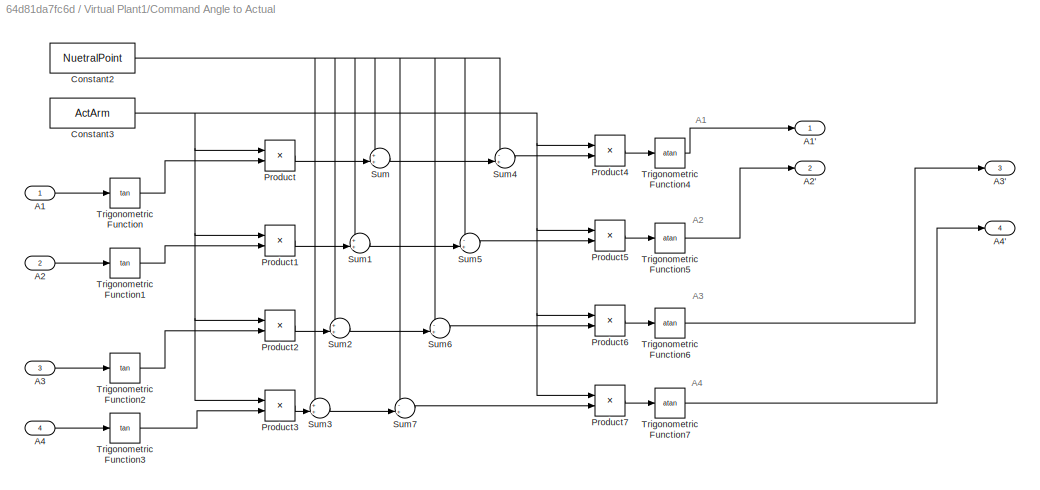
BLOCK [SubSystem] Virtual Plant1/Command Angle to Actual
  Ports = [4, 4]
  RequestExecContextInheritance = off
  Variant = off
BLOCK [Inport] Virtual Plant1/Command Angle to Actual/A1
  IconDisplay = Port number
BLOCK [Outport] Virtual Plant1/Command Angle to Actual/A1'
  IconDisplay = Port number
BLOCK [Inport] Virtual Plant1/Command Angle to Actual/A2
  IconDisplay = Port number
  Port = 2
BLOCK [Outport] Virtual Plant1/Command Angle to Actual/A2'
  IconDisplay = Port number
  Port = 2
BLOCK [Inport] Virtual Plant1/Command Angle to Actual/A3
  IconDisplay = Port number
  Port = 3
BLOCK [Outport] Virtual Plant1/Command Angle to Actual/A3'
  IconDisplay = Port number
  Port = 3
BLOCK [Inport] Virtual Plant1/Command Angle to Actual/A4
  IconDisplay = Port number
  Port = 4
BLOCK [Outport] Virtual Plant1/Command Angle to Actual/A4'
  IconDisplay = Port number
  Port = 4
BLOCK [Constant] Virtual Plant1/Command Angle to Actual/Constant2
  Value = NuetralPoint
BLOCK [Constant] Virtual Plant1/Command Angle to Actual/Constant3
  Value = ActArm
BLOCK [Product] Virtual Plant1/Command Angle to Actual/Product
  InputSameDT = off
  Inputs = */
  OutDataTypeStr = Inherit: Inherit via internal rule
  Ports = [2, 1]
  RndMeth = Floor
  SaturateOnIntegerOverflow = off
BLOCK [Product] Virtual Plant1/Command Angle to Actual/Product1
  InputSameDT = off
  Inputs = */
  OutDataTypeStr = Inherit: Inherit via internal rule
  Ports = [2, 1]
  RndMeth = Floor
  SaturateOnIntegerOverflow = off
BLOCK [Product] Virtual Plant1/Command Angle to Actual/Product2
  InputSameDT = off
  Inputs = */
  OutDataTypeStr = Inherit: Inherit via internal rule
  Ports = [2, 1]
  RndMeth = Floor
  SaturateOnIntegerOverflow = off
BLOCK [Product] Virtual Plant1/Command Angle to Actual/Product3
  InputSameDT = off
  Inputs = */
  OutDataTypeStr = Inherit: Inherit via internal rule
  Ports = [2, 1]
  RndMeth = Floor
  SaturateOnIntegerOverflow = off
BLOCK [Product] Virtual Plant1/Command Angle to Actual/Product4
  InputSameDT = off
  Inputs = */
  OutDataTypeStr = Inherit: Inherit via internal rule
  Ports = [2, 1]
  RndMeth = Floor
  SaturateOnIntegerOverflow = off
BLOCK [Product] Virtual Plant1/Command Angle to Actual/Product5
  InputSameDT = off
  Inputs = */
  OutDataTypeStr = Inherit: Inherit via internal rule
  Ports = [2, 1]
  RndMeth = Floor
  SaturateOnIntegerOverflow = off
BLOCK [Product] Virtual Plant1/Command Angle to Actual/Product6
  InputSameDT = off
  Inputs = */
  OutDataTypeStr = Inherit: Inherit via internal rule
  Ports = [2, 1]
  RndMeth = Floor
  SaturateOnIntegerOverflow = off
BLOCK [Product] Virtual Plant1/Command Angle to Actual/Product7
  InputSameDT = off
  Inputs = */
  OutDataTypeStr = Inherit: Inherit via internal rule
  Ports = [2, 1]
  RndMeth = Floor
  SaturateOnIntegerOverflow = off
BLOCK [Sum] Virtual Plant1/Command Angle to Actual/Sum
  IconShape = round
  InputSameDT = off
  Inputs = ++|
  OutDataTypeStr = Inherit: Inherit via internal rule
  Ports = [2, 1]
  SaturateOnIntegerOverflow = off
BLOCK [Sum] Virtual Plant1/Command Angle to Actual/Sum1
  IconShape = round
  InputSameDT = off
  Inputs = ++|
  OutDataTypeStr = Inherit: Inherit via internal rule
  Ports = [2, 1]
  SaturateOnIntegerOverflow = off
BLOCK [Sum] Virtual Plant1/Command Angle to Actual/Sum2
  IconShape = round
  InputSameDT = off
  Inputs = ++|
  OutDataTypeStr = Inherit: Inherit via internal rule
  Ports = [2, 1]
  SaturateOnIntegerOverflow = off
BLOCK [Sum] Virtual Plant1/Command Angle to Actual/Sum3
  IconShape = round
  InputSameDT = off
  Inputs = ++|
  OutDataTypeStr = Inherit: Inherit via internal rule
  Ports = [2, 1]
  SaturateOnIntegerOverflow = off
BLOCK [Sum] Virtual Plant1/Command Angle to Actual/Sum4
  IconShape = round
  InputSameDT = off
  Inputs = -+|
  OutDataTypeStr = Inherit: Inherit via internal rule
  Ports = [2, 1]
  SaturateOnIntegerOverflow = off
BLOCK [Sum] Virtual Plant1/Command Angle to Actual/Sum5
  IconShape = round
  InputSameDT = off
  Inputs = -+|
  OutDataTypeStr = Inherit: Inherit via internal rule
  Ports = [2, 1]
  SaturateOnIntegerOverflow = off
BLOCK [Sum] Virtual Plant1/Command Angle to Actual/Sum6
  IconShape = round
  InputSameDT = off
  Inputs = -+|
  OutDataTypeStr = Inherit: Inherit via internal rule
  Ports = [2, 1]
  SaturateOnIntegerOverflow = off
BLOCK [Sum] Virtual Plant1/Command Angle to Actual/Sum7
  IconShape = round
  InputSameDT = off
  Inputs = -+|
  OutDataTypeStr = Inherit: Inherit via internal rule
  Ports = [2, 1]
  SaturateOnIntegerOverflow = off
BLOCK [Trigonometry] Virtual Plant1/Command Angle to Actual/Trigonometric Function
  Operator = tan
  Ports = [1, 1]
BLOCK [Trigonometry] Virtual Plant1/Command Angle to Actual/Trigonometric Function1
  Operator = tan
  Ports = [1, 1]
BLOCK [Trigonometry] Virtual Plant1/Command Angle to Actual/Trigonometric Function2
  Operator = tan
  Ports = [1, 1]
BLOCK [Trigonometry] Virtual Plant1/Command Angle to Actual/Trigonometric Function3
  Operator = tan
  Ports = [1, 1]
BLOCK [Trigonometry] Virtual Plant1/Command Angle to Actual/Trigonometric Function4
  Operator = atan
  Ports = [1, 1]
BLOCK [Trigonometry] Virtual Plant1/Command Angle to Actual/Trigonometric Function5
  Operator = atan
  Ports = [1, 1]
BLOCK [Trigonometry] Virtual Plant1/Command Angle to Actual/Trigonometric Function6
  Operator = atan
  Ports = [1, 1]
BLOCK [Trigonometry] Virtual Plant1/Command Angle to Actual/Trigonometric Function7
  Operator = atan
  Ports = [1, 1]
BLOCK [Constant] Virtual Plant1/Constant
  Value = 0
BLOCK [Demux] Virtual Plant1/Demux2
  DisplayOption = bar
  Ports = [1, 4]
BLOCK [Integrator] Virtual Plant1/Integrator
  Ports = [1, 1]
BLOCK [ManualSwitch] Virtual Plant1/Manual Switch
BLOCK [ManualSwitch] Virtual Plant1/Manual Switch1
BLOCK [Mux] Virtual Plant1/Mux1
  DisplayOption = bar
  Inputs = 2
  Ports = [2, 1]
BLOCK [Mux] Virtual Plant1/Mux2
  DisplayOption = bar
  Inputs = 2
  Ports = [2, 1]
BLOCK [SubSystem] Virtual Plant1/OP1 to OP2
  Ports = [3, 1]
  RequestExecContextInheritance = off
  Variant = off
BLOCK [Inport] Virtual Plant1/OP1 to OP2/A3
  IconDisplay = Port number
  Port = 2
BLOCK [Inport] Virtual Plant1/OP1 to OP2/A4
  IconDisplay = Port number
  Port = 3
BLOCK [SubSystem] Virtual Plant1/OP1 to OP2/Beam Pass 1
  Ports = [1, 1]
  RequestExecContextInheritance = off
  Variant = off
BLOCK [Outport] Virtual Plant1/OP1 to OP2/Beam Pass 1/'l6
  IconDisplay = Port number
BLOCK [Demux] Virtual Plant1/OP1 to OP2/Beam Pass 1/Demux
  DisplayOption = bar
  Outputs = 2
  Ports = [1, 2]
BLOCK [Mux] Virtual Plant1/OP1 to OP2/Beam Pass 1/Mux
  DisplayOption = bar
  Inputs = 2
  Ports = [2, 1]
BLOCK [Inport] Virtual Plant1/OP1 to OP2/Beam Pass 1/Optical Plane 1 Parameters
  IconDisplay = Port number
BLOCK [Trigonometry] Virtual Plant1/OP1 to OP2/Beam Pass 1/Sine
  Ports = [1, 1]
BLOCK [Gain] Virtual Plant1/OP1 to OP2/Beam Pass 1/Snell Ratio
  Gain = n_FS/n_BS
  OutDataTypeStr = Inherit: Inherit via internal rule
  ParamDataTypeStr = Inherit: Inherit via internal rule
  SaturateOnIntegerOverflow = off
BLOCK [Sum] Virtual Plant1/OP1 to OP2/Beam Pass 1/Sum
  IconShape = round
  InputSameDT = off
  Inputs = |++
  OutDataTypeStr = Inherit: Inherit via internal rule
  Ports = [2, 1]
  SaturateOnIntegerOverflow = off
BLOCK [Sum] Virtual Plant1/OP1 to OP2/Beam Pass 1/Sum1
  IconShape = round
  InputSameDT = off
  Inputs = |+-
  OutDataTypeStr = Inherit: Inherit via internal rule
  Ports = [2, 1]
  SaturateOnIntegerOverflow = off
BLOCK [Trigonometry] Virtual Plant1/OP1 to OP2/Beam Pass 1/Tangent
  Operator = tan
  Ports = [1, 1]
BLOCK [Gain] Virtual Plant1/OP1 to OP2/Beam Pass 1/Thickness Offset 1
  Gain = D(1)*cos(Beta(1))
  OutDataTypeStr = Inherit: Inherit via internal rule
  ParamDataTypeStr = Inherit: Inherit via internal rule
  SaturateOnIntegerOverflow = off
BLOCK [Constant] Virtual Plant1/OP1 to OP2/Beam Pass 1/Thickness Offset 2
  Value = D(1)*sin(Beta(1))
BLOCK [SubSystem] Virtual Plant1/OP1 to OP2/Beam Pass 2
  Ports = [1, 1]
  RequestExecContextInheritance = off
  Variant = off
BLOCK [Outport] Virtual Plant1/OP1 to OP2/Beam Pass 2/'l7
  IconDisplay = Port number
BLOCK [Demux] Virtual Plant1/OP1 to OP2/Beam Pass 2/Demux
  DisplayOption = bar
  Outputs = 2
  Ports = [1, 2]
BLOCK [Mux] Virtual Plant1/OP1 to OP2/Beam Pass 2/Mux
  DisplayOption = bar
  Inputs = 2
  Ports = [2, 1]
BLOCK [Trigonometry] Virtual Plant1/OP1 to OP2/Beam Pass 2/Sine
  Ports = [1, 1]
BLOCK [Gain] Virtual Plant1/OP1 to OP2/Beam Pass 2/Snell Ratio
  Gain = n_FS/n_BS
  OutDataTypeStr = Inherit: Inherit via internal rule
  ParamDataTypeStr = Inherit: Inherit via internal rule
  SaturateOnIntegerOverflow = off
BLOCK [Sum] Virtual Plant1/OP1 to OP2/Beam Pass 2/Sum
  IconShape = round
  InputSameDT = off
  Inputs = |++
  OutDataTypeStr = Inherit: Inherit via internal rule
  Ports = [2, 1]
  SaturateOnIntegerOverflow = off
BLOCK [Sum] Virtual Plant1/OP1 to OP2/Beam Pass 2/Sum1
  IconShape = round
  InputSameDT = off
  Inputs = |+-
  OutDataTypeStr = Inherit: Inherit via internal rule
  Ports = [2, 1]
  SaturateOnIntegerOverflow = off
BLOCK [Trigonometry] Virtual Plant1/OP1 to OP2/Beam Pass 2/Tangent
  Operator = tan
  Ports = [1, 1]
BLOCK [Gain] Virtual Plant1/OP1 to OP2/Beam Pass 2/Thickness Offset 1
  Gain = D(2)*cos(Beta(2))
  OutDataTypeStr = Inherit: Inherit via internal rule
  ParamDataTypeStr = Inherit: Inherit via internal rule
  SaturateOnIntegerOverflow = off
BLOCK [Constant] Virtual Plant1/OP1 to OP2/Beam Pass 2/Thickness Offset 2
  Value = D(2)*sin(Beta(2))
BLOCK [Inport] Virtual Plant1/OP1 to OP2/Beam Pass 2/l6'
  IconDisplay = Port number
BLOCK [Constant] Virtual Plant1/OP1 to OP2/Constant
BLOCK [Constant] Virtual Plant1/OP1 to OP2/Constant1
  Value = pi/2
BLOCK [Demux] Virtual Plant1/OP1 to OP2/Demux
  DisplayOption = bar
  Outputs = 2
  Ports = [1, 2]
BLOCK [Gain] Virtual Plant1/OP1 to OP2/Gain
  Gain = l(:,:,9)
  Multiplication = Matrix(K*u)
  OutDataTypeStr = Inherit: Inherit via internal rule
  ParamDataTypeStr = Inherit: Inherit via internal rule
  SaturateOnIntegerOverflow = off
BLOCK [Gain] Virtual Plant1/OP1 to OP2/Gain3
  Gain = -2
  OutDataTypeStr = Inherit: Inherit via internal rule
  ParamDataTypeStr = Inherit: Inherit via internal rule
  SaturateOnIntegerOverflow = off
BLOCK [Gain] Virtual Plant1/OP1 to OP2/Gain4
  Gain = 2
  OutDataTypeStr = Inherit: Inherit via internal rule
  ParamDataTypeStr = Inherit: Inherit via internal rule
  SaturateOnIntegerOverflow = off
BLOCK [Gain] Virtual Plant1/OP1 to OP2/Gain5
  Gain = -1
  OutDataTypeStr = Inherit: Inherit via internal rule
  ParamDataTypeStr = Inherit: Inherit via internal rule
  SaturateOnIntegerOverflow = off
BLOCK [Gain] Virtual Plant1/OP1 to OP2/Gain6
  Gain = t34
  OutDataTypeStr = Inherit: Inherit via internal rule
  ParamDataTypeStr = Inherit: Inherit via internal rule
  SaturateOnIntegerOverflow = off
BLOCK [Gain] Virtual Plant1/OP1 to OP2/Gain7
  Gain = d(8)
  OutDataTypeStr = Inherit: Inherit via internal rule
  ParamDataTypeStr = Inherit: Inherit via internal rule
  SaturateOnIntegerOverflow = off
BLOCK [Mux] Virtual Plant1/OP1 to OP2/Mux
  DisplayOption = bar
  Inputs = 2
  Ports = [2, 1]
BLOCK [Product] Virtual Plant1/OP1 to OP2/Product
  InputSameDT = off
  Inputs = */
  OutDataTypeStr = Inherit: Inherit via internal rule
  Ports = [2, 1]
  RndMeth = Floor
  SaturateOnIntegerOverflow = off
BLOCK [Product] Virtual Plant1/OP1 to OP2/Product1
  InputSameDT = off
  Inputs = **
  OutDataTypeStr = Inherit: Inherit via internal rule
  Ports = [2, 1]
  RndMeth = Floor
  SaturateOnIntegerOverflow = off
BLOCK [Product] Virtual Plant1/OP1 to OP2/Product2
  InputSameDT = off
  Inputs = **
  OutDataTypeStr = Inherit: Inherit via internal rule
  Ports = [2, 1]
  RndMeth = Floor
  SaturateOnIntegerOverflow = off
BLOCK [Product] Virtual Plant1/OP1 to OP2/Product3
  InputSameDT = off
  Inputs = **
  OutDataTypeStr = Inherit: Inherit via internal rule
  Ports = [2, 1]
  RndMeth = Floor
  SaturateOnIntegerOverflow = off
BLOCK [Sum] Virtual Plant1/OP1 to OP2/Sum
  IconShape = round
  InputSameDT = off
  Inputs = |++
  OutDataTypeStr = Inherit: Inherit via internal rule
  Ports = [2, 1]
  SaturateOnIntegerOverflow = off
BLOCK [Sum] Virtual Plant1/OP1 to OP2/Sum1
  IconShape = round
  InputSameDT = off
  Inputs = +++
  OutDataTypeStr = Inherit: Inherit via internal rule
  Ports = [3, 1]
  SaturateOnIntegerOverflow = off
BLOCK [Sum] Virtual Plant1/OP1 to OP2/Sum2
  IconShape = round
  InputSameDT = off
  Inputs = ++|
  OutDataTypeStr = Inherit: Inherit via internal rule
  Ports = [2, 1]
  SaturateOnIntegerOverflow = off
BLOCK [Sum] Virtual Plant1/OP1 to OP2/Sum3
  IconShape = round
  InputSameDT = off
  Inputs = +++
  OutDataTypeStr = Inherit: Inherit via internal rule
  Ports = [3, 1]
  SaturateOnIntegerOverflow = off
BLOCK [Sum] Virtual Plant1/OP1 to OP2/Sum4
  IconShape = round
  InputSameDT = off
  Inputs = +++
  OutDataTypeStr = Inherit: Inherit via internal rule
  Ports = [3, 1]
  SaturateOnIntegerOverflow = off
BLOCK [Trigonometry] Virtual Plant1/OP1 to OP2/Trigonometric Function
  Operator = tan
  Ports = [1, 1]
BLOCK [Trigonometry] Virtual Plant1/OP1 to OP2/Trigonometric Function1
  Operator = tan
  Ports = [1, 1]
BLOCK [Inport] Virtual Plant1/OP1 to OP2/[OP1]
  IconDisplay = Port number
BLOCK [Outport] Virtual Plant1/OP1 to OP2/[OP2]
  IconDisplay = Port number
BLOCK [Gain] Virtual Plant1/OP1 to OP2/l(6)
  Gain = l(:,:,6)
  Multiplication = Matrix(K*u)
  OutDataTypeStr = Inherit: Inherit via internal rule
  ParamDataTypeStr = Inherit: Inherit via internal rule
  SaturateOnIntegerOverflow = off
BLOCK [Gain] Virtual Plant1/OP1 to OP2/l(7)
  Gain = l(:,:,7)
  Multiplication = Matrix(K*u)
  OutDataTypeStr = Inherit: Inherit via internal rule
  ParamDataTypeStr = Inherit: Inherit via internal rule
  SaturateOnIntegerOverflow = off
BLOCK [SubSystem] Virtual Plant1/OP1 to Sensors 1&2
  Ports = [1, 1]
  RequestExecContextInheritance = off
  Variant = off
BLOCK [SubSystem] Virtual Plant1/OP1 to Sensors 1&2/Beam Reflection 1
  Ports = [1, 1]
  RequestExecContextInheritance = off
  Variant = off
BLOCK [Constant] Virtual Plant1/OP1 to Sensors 1&2/Beam Reflection 1/Constant
  Value = pi/2
BLOCK [Constant] Virtual Plant1/OP1 to Sensors 1&2/Beam Reflection 1/Constant1
  Value = -2*Beta(1)
BLOCK [Demux] Virtual Plant1/OP1 to Sensors 1&2/Beam Reflection 1/Demux
  DisplayOption = bar
  Outputs = 2
  Ports = [1, 2]
BLOCK [Gain] Virtual Plant1/OP1 to Sensors 1&2/Beam Reflection 1/Gain
  Gain = tan(Beta(1))
  OutDataTypeStr = Inherit: Inherit via internal rule
  ParamDataTypeStr = Inherit: Inherit via internal rule
  SaturateOnIntegerOverflow = off
BLOCK [Mux] Virtual Plant1/OP1 to Sensors 1&2/Beam Reflection 1/Mux
  DisplayOption = bar
  Inputs = 2
  Ports = [2, 1]
BLOCK [Outport] Virtual Plant1/OP1 to Sensors 1&2/Beam Reflection 1/Reflected Beam
  IconDisplay = Port number
BLOCK [Sum] Virtual Plant1/OP1 to Sensors 1&2/Beam Reflection 1/Sum
  IconShape = round
  InputSameDT = off
  Inputs = +++
  OutDataTypeStr = Inherit: Inherit via internal rule
  Ports = [3, 1]
  SaturateOnIntegerOverflow = off
BLOCK [Inport] Virtual Plant1/OP1 to Sensors 1&2/Beam Reflection 1/[OP1]
  IconDisplay = Port number
BLOCK [SubSystem] Virtual Plant1/OP1 to Sensors 1&2/Beam Reflection 2
  Ports = [1, 1]
  RequestExecContextInheritance = off
  Variant = off
BLOCK [Constant] Virtual Plant1/OP1 to Sensors 1&2/Beam Reflection 2/Constant
  Value = pi/2
BLOCK [Constant] Virtual Plant1/OP1 to Sensors 1&2/Beam Reflection 2/Constant1
  Value = -2*Beta(2)
BLOCK [Demux] Virtual Plant1/OP1 to Sensors 1&2/Beam Reflection 2/Demux
  DisplayOption = bar
  Outputs = 2
  Ports = [1, 2]
BLOCK [Gain] Virtual Plant1/OP1 to Sensors 1&2/Beam Reflection 2/Gain
  Gain = tan(Beta(2))
  OutDataTypeStr = Inherit: Inherit via internal rule
  ParamDataTypeStr = Inherit: Inherit via internal rule
  SaturateOnIntegerOverflow = off
BLOCK [Mux] Virtual Plant1/OP1 to Sensors 1&2/Beam Reflection 2/Mux
  DisplayOption = bar
  Inputs = 2
  Ports = [2, 1]
BLOCK [Outport] Virtual Plant1/OP1 to Sensors 1&2/Beam Reflection 2/Reflected Beam
  IconDisplay = Port number
BLOCK [Sum] Virtual Plant1/OP1 to Sensors 1&2/Beam Reflection 2/Sum
  IconShape = round
  InputSameDT = off
  Inputs = +++
  OutDataTypeStr = Inherit: Inherit via internal rule
  Ports = [3, 1]
  SaturateOnIntegerOverflow = off
BLOCK [Inport] Virtual Plant1/OP1 to Sensors 1&2/Beam Reflection 2/[OP1]
  IconDisplay = Port number
BLOCK [Demux] Virtual Plant1/OP1 to Sensors 1&2/Demux
  DisplayOption = bar
  Outputs = 2
  Ports = [1, 2]
BLOCK [Demux] Virtual Plant1/OP1 to Sensors 1&2/Demux1
  DisplayOption = bar
  Outputs = 2
  Ports = [1, 2]
BLOCK [Gain] Virtual Plant1/OP1 to Sensors 1&2/Gain
  Gain = l(:,:,6)
  Multiplication = Matrix(K*u)
  OutDataTypeStr = Inherit: Inherit via internal rule
  ParamDataTypeStr = Inherit: Inherit via internal rule
  SaturateOnIntegerOverflow = off
BLOCK [Gain] Virtual Plant1/OP1 to Sensors 1&2/Gain1
  Gain = l(12)
  Multiplication = Matrix(K*u)
  OutDataTypeStr = Inherit: Inherit via internal rule
  ParamDataTypeStr = Inherit: Inherit via internal rule
  SaturateOnIntegerOverflow = off
BLOCK [Gain] Virtual Plant1/OP1 to Sensors 1&2/Gain2
  Gain = [1 0; 1/f(1) 1]
  Multiplication = Matrix(K*u)
  OutDataTypeStr = Inherit: Inherit via internal rule
  ParamDataTypeStr = Inherit: Inherit via internal rule
  SaturateOnIntegerOverflow = off
BLOCK [Gain] Virtual Plant1/OP1 to Sensors 1&2/Gain3
  Gain = l(13)
  Multiplication = Matrix(K*u)
  OutDataTypeStr = Inherit: Inherit via internal rule
  ParamDataTypeStr = Inherit: Inherit via internal rule
  SaturateOnIntegerOverflow = off
BLOCK [Gain] Virtual Plant1/OP1 to Sensors 1&2/Gain4
  Gain = l(:,:,14)
  Multiplication = Matrix(K*u)
  OutDataTypeStr = Inherit: Inherit via internal rule
  ParamDataTypeStr = Inherit: Inherit via internal rule
  SaturateOnIntegerOverflow = off
BLOCK [Gain] Virtual Plant1/OP1 to Sensors 1&2/Gain5
  Gain = [1 0; 1/f(2) 1]
  Multiplication = Matrix(K*u)
  OutDataTypeStr = Inherit: Inherit via internal rule
  ParamDataTypeStr = Inherit: Inherit via internal rule
  SaturateOnIntegerOverflow = off
BLOCK [Gain] Virtual Plant1/OP1 to Sensors 1&2/Gain6
  Gain = l(:,:,15)
  Multiplication = Matrix(K*u)
  OutDataTypeStr = Inherit: Inherit via internal rule
  ParamDataTypeStr = Inherit: Inherit via internal rule
  SaturateOnIntegerOverflow = off
BLOCK [Mux] Virtual Plant1/OP1 to Sensors 1&2/Mux
  DisplayOption = bar
  Inputs = 2
  Ports = [2, 1]
BLOCK [Terminator] Virtual Plant1/OP1 to Sensors 1&2/Terminator
BLOCK [Terminator] Virtual Plant1/OP1 to Sensors 1&2/Terminator2
BLOCK [Inport] Virtual Plant1/OP1 to Sensors 1&2/[OP1]
  IconDisplay = Port number
BLOCK [Outport] Virtual Plant1/OP1 to Sensors 1&2/[S12]
  IconDisplay = Port number
BLOCK [SubSystem] Virtual Plant1/OP2 to Sensors 3&4
  Ports = [1, 1]
  RequestExecContextInheritance = off
  Variant = off
BLOCK [SubSystem] Virtual Plant1/OP2 to Sensors 3&4/Beam Reflection 3
  Ports = [1, 1]
  RequestExecContextInheritance = off
  Variant = off
BLOCK [Constant] Virtual Plant1/OP2 to Sensors 3&4/Beam Reflection 3/Constant
  Value = pi/2
BLOCK [Constant] Virtual Plant1/OP2 to Sensors 3&4/Beam Reflection 3/Constant1
  Value = -2*Beta(3)
BLOCK [Demux] Virtual Plant1/OP2 to Sensors 3&4/Beam Reflection 3/Demux
  DisplayOption = bar
  Outputs = 2
  Ports = [1, 2]
BLOCK [Gain] Virtual Plant1/OP2 to Sensors 3&4/Beam Reflection 3/Gain
  Gain = tan(Beta(3))
  OutDataTypeStr = Inherit: Inherit via internal rule
  ParamDataTypeStr = Inherit: Inherit via internal rule
  SaturateOnIntegerOverflow = off
BLOCK [Mux] Virtual Plant1/OP2 to Sensors 3&4/Beam Reflection 3/Mux
  DisplayOption = bar
  Inputs = 2
  Ports = [2, 1]
BLOCK [Outport] Virtual Plant1/OP2 to Sensors 3&4/Beam Reflection 3/Reflected Beam
  IconDisplay = Port number
BLOCK [Sum] Virtual Plant1/OP2 to Sensors 3&4/Beam Reflection 3/Sum
  IconShape = round
  InputSameDT = off
  Inputs = +++
  OutDataTypeStr = Inherit: Inherit via internal rule
  Ports = [3, 1]
  SaturateOnIntegerOverflow = off
BLOCK [Inport] Virtual Plant1/OP2 to Sensors 3&4/Beam Reflection 3/[OP2]
  IconDisplay = Port number
BLOCK [SubSystem] Virtual Plant1/OP2 to Sensors 3&4/Beam Reflection 4
  Ports = [1, 1]
  RequestExecContextInheritance = off
  Variant = off
BLOCK [Constant] Virtual Plant1/OP2 to Sensors 3&4/Beam Reflection 4/Constant
  Value = pi/2
BLOCK [Constant] Virtual Plant1/OP2 to Sensors 3&4/Beam Reflection 4/Constant1
  Value = -2*Beta(4)
BLOCK [Demux] Virtual Plant1/OP2 to Sensors 3&4/Beam Reflection 4/Demux
  DisplayOption = bar
  Outputs = 2
  Ports = [1, 2]
BLOCK [Gain] Virtual Plant1/OP2 to Sensors 3&4/Beam Reflection 4/Gain
  Gain = tan(Beta(4))
  OutDataTypeStr = Inherit: Inherit via internal rule
  ParamDataTypeStr = Inherit: Inherit via internal rule
  SaturateOnIntegerOverflow = off
BLOCK [Mux] Virtual Plant1/OP2 to Sensors 3&4/Beam Reflection 4/Mux
  DisplayOption = bar
  Inputs = 2
  Ports = [2, 1]
BLOCK [Outport] Virtual Plant1/OP2 to Sensors 3&4/Beam Reflection 4/Reflected Beam
  IconDisplay = Port number
BLOCK [Sum] Virtual Plant1/OP2 to Sensors 3&4/Beam Reflection 4/Sum
  IconShape = round
  InputSameDT = off
  Inputs = +++
  OutDataTypeStr = Inherit: Inherit via internal rule
  Ports = [3, 1]
  SaturateOnIntegerOverflow = off
BLOCK [Inport] Virtual Plant1/OP2 to Sensors 3&4/Beam Reflection 4/[OP2]*l(9)
  IconDisplay = Port number
BLOCK [Demux] Virtual Plant1/OP2 to Sensors 3&4/Demux
  DisplayOption = bar
  Outputs = 2
  Ports = [1, 2]
BLOCK [Demux] Virtual Plant1/OP2 to Sensors 3&4/Demux1
  DisplayOption = bar
  Outputs = 2
  Ports = [1, 2]
BLOCK [Gain] Virtual Plant1/OP2 to Sensors 3&4/Gain
  Gain = l(:,:,9)
  Multiplication = Matrix(K*u)
  OutDataTypeStr = Inherit: Inherit via internal rule
  ParamDataTypeStr = Inherit: Inherit via internal rule
  SaturateOnIntegerOverflow = off
BLOCK [Gain] Virtual Plant1/OP2 to Sensors 3&4/Gain1
  Gain = l(:,:,16)
  Multiplication = Matrix(K*u)
  OutDataTypeStr = Inherit: Inherit via internal rule
  ParamDataTypeStr = Inherit: Inherit via internal rule
  SaturateOnIntegerOverflow = off
BLOCK [Gain] Virtual Plant1/OP2 to Sensors 3&4/Gain2
  Gain = [1 0; 1/f(3) 1]
  Multiplication = Matrix(K*u)
  OutDataTypeStr = Inherit: Inherit via internal rule
  ParamDataTypeStr = Inherit: Inherit via internal rule
  SaturateOnIntegerOverflow = off
BLOCK [Gain] Virtual Plant1/OP2 to Sensors 3&4/Gain3
  Gain = l(:,:,17)
  Multiplication = Matrix(K*u)
  OutDataTypeStr = Inherit: Inherit via internal rule
  ParamDataTypeStr = Inherit: Inherit via internal rule
  SaturateOnIntegerOverflow = off
BLOCK [Gain] Virtual Plant1/OP2 to Sensors 3&4/Gain4
  Gain = l(:,:,18)
  Multiplication = Matrix(K*u)
  OutDataTypeStr = Inherit: Inherit via internal rule
  ParamDataTypeStr = Inherit: Inherit via internal rule
  SaturateOnIntegerOverflow = off
BLOCK [Gain] Virtual Plant1/OP2 to Sensors 3&4/Gain5
  Gain = [1 0; 1/f(4) 1]
  Multiplication = Matrix(K*u)
  OutDataTypeStr = Inherit: Inherit via internal rule
  ParamDataTypeStr = Inherit: Inherit via internal rule
  SaturateOnIntegerOverflow = off
BLOCK [Gain] Virtual Plant1/OP2 to Sensors 3&4/Gain6
  Gain = l(:,:,19)
  Multiplication = Matrix(K*u)
  OutDataTypeStr = Inherit: Inherit via internal rule
  ParamDataTypeStr = Inherit: Inherit via internal rule
  SaturateOnIntegerOverflow = off
BLOCK [Mux] Virtual Plant1/OP2 to Sensors 3&4/Mux
  DisplayOption = bar
  Inputs = 2
  Ports = [2, 1]
BLOCK [Terminator] Virtual Plant1/OP2 to Sensors 3&4/Terminator
BLOCK [Terminator] Virtual Plant1/OP2 to Sensors 3&4/Terminator2
BLOCK [Inport] Virtual Plant1/OP2 to Sensors 3&4/[OP2]
  IconDisplay = Port number
BLOCK [Outport] Virtual Plant1/OP2 to Sensors 3&4/[S34]
  IconDisplay = Port number
BLOCK [SignalGenerator] Virtual Plant1/Pointing Jitter
  Amplitude = 0.001
  Frequency = 1/EndTime
  Ports = [0, 1]
BLOCK [SignalGenerator] Virtual Plant1/Position Jitter1
  Amplitude = -0.5
  Frequency = 5/EndTime
  Ports = [0, 1]
  WaveForm = random
BLOCK [Reference] Virtual Plant1/Ramp1  REF=simulink/Sources/Ramp
  Commented = on
  Ports = [0, 1]
  SourceBlock = simulink/Sources/Ramp
  SourceType = Ramp
BLOCK [Outport] Virtual Plant1/Sensor Data
  IconDisplay = Port number
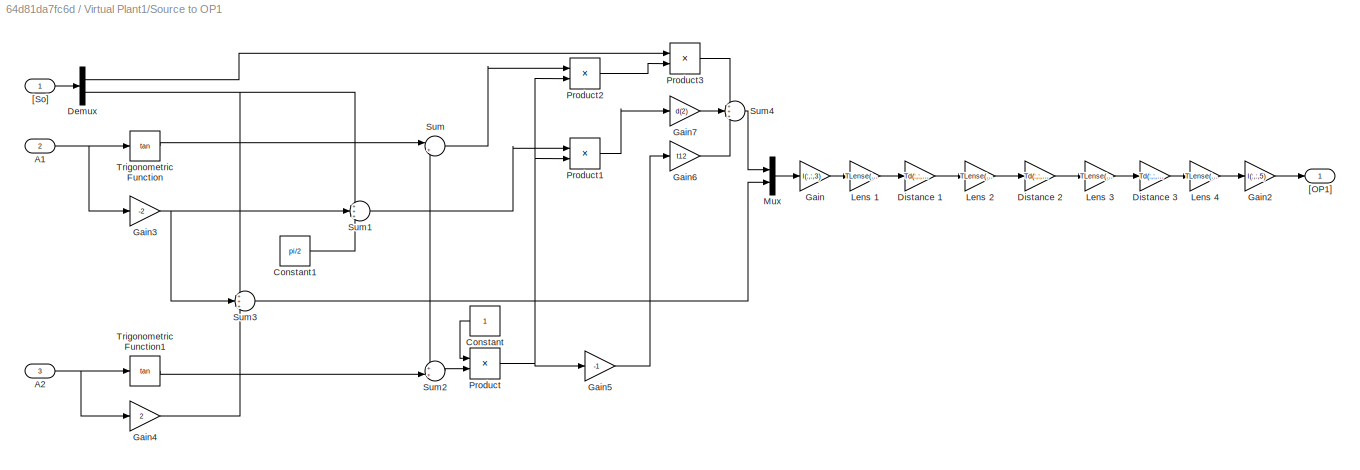
BLOCK [SubSystem] Virtual Plant1/Source to OP1
  Ports = [3, 1]
  RequestExecContextInheritance = off
  Variant = off
BLOCK [Inport] Virtual Plant1/Source to OP1/A1
  IconDisplay = Port number
  OutMin = [pi/6]
  Port = 2
BLOCK [Inport] Virtual Plant1/Source to OP1/A2
  IconDisplay = Port number
  OutMin = [pi/6]
  Port = 3
BLOCK [Constant] Virtual Plant1/Source to OP1/Constant
BLOCK [Constant] Virtual Plant1/Source to OP1/Constant1
  Value = pi/2
BLOCK [Demux] Virtual Plant1/Source to OP1/Demux
  DisplayOption = bar
  Outputs = 2
  Ports = [1, 2]
BLOCK [Gain] Virtual Plant1/Source to OP1/Distance 1
  Gain = Td(:,:,1)
  Multiplication = Matrix(K*u)
  OutDataTypeStr = Inherit: Inherit via internal rule
  ParamDataTypeStr = Inherit: Inherit via internal rule
  SaturateOnIntegerOverflow = off
BLOCK [Gain] Virtual Plant1/Source to OP1/Distance 2
  Gain = Td(:,:,2)
  Multiplication = Matrix(K*u)
  OutDataTypeStr = Inherit: Inherit via internal rule
  ParamDataTypeStr = Inherit: Inherit via internal rule
  SaturateOnIntegerOverflow = off
BLOCK [Gain] Virtual Plant1/Source to OP1/Distance 3
  Gain = Td(:,:,3)
  Multiplication = Matrix(K*u)
  OutDataTypeStr = Inherit: Inherit via internal rule
  ParamDataTypeStr = Inherit: Inherit via internal rule
  SaturateOnIntegerOverflow = off
BLOCK [Gain] Virtual Plant1/Source to OP1/Gain
  Gain = l(:,:,3)
  Multiplication = Matrix(K*u)
  OutDataTypeStr = Inherit: Inherit via internal rule
  ParamDataTypeStr = Inherit: Inherit via internal rule
  SaturateOnIntegerOverflow = off
BLOCK [Gain] Virtual Plant1/Source to OP1/Gain2
  Gain = l(:,:,5)
  Multiplication = Matrix(K*u)
  OutDataTypeStr = Inherit: Inherit via internal rule
  ParamDataTypeStr = Inherit: Inherit via internal rule
  SaturateOnIntegerOverflow = off
BLOCK [Gain] Virtual Plant1/Source to OP1/Gain3
  Gain = -2
  OutDataTypeStr = Inherit: Inherit via internal rule
  ParamDataTypeStr = Inherit: Inherit via internal rule
  SaturateOnIntegerOverflow = off
BLOCK [Gain] Virtual Plant1/Source to OP1/Gain4
  Gain = 2
  OutDataTypeStr = Inherit: Inherit via internal rule
  ParamDataTypeStr = Inherit: Inherit via internal rule
  SaturateOnIntegerOverflow = off
BLOCK [Gain] Virtual Plant1/Source to OP1/Gain5
  Gain = -1
  OutDataTypeStr = Inherit: Inherit via internal rule
  ParamDataTypeStr = Inherit: Inherit via internal rule
  SaturateOnIntegerOverflow = off
BLOCK [Gain] Virtual Plant1/Source to OP1/Gain6
  Gain = t12
  OutDataTypeStr = Inherit: Inherit via internal rule
  ParamDataTypeStr = Inherit: Inherit via internal rule
  SaturateOnIntegerOverflow = off
BLOCK [Gain] Virtual Plant1/Source to OP1/Gain7
  Gain = d(2)
  OutDataTypeStr = Inherit: Inherit via internal rule
  ParamDataTypeStr = Inherit: Inherit via internal rule
  SaturateOnIntegerOverflow = off
BLOCK [Gain] Virtual Plant1/Source to OP1/Lens 1
  Gain = TLense(:,:,1)
  Multiplication = Matrix(K*u)
  OutDataTypeStr = Inherit: Inherit via internal rule
  ParamDataTypeStr = Inherit: Inherit via internal rule
  SaturateOnIntegerOverflow = off
BLOCK [Gain] Virtual Plant1/Source to OP1/Lens 2
  Gain = TLense(:,:,2)
  Multiplication = Matrix(K*u)
  OutDataTypeStr = Inherit: Inherit via internal rule
  ParamDataTypeStr = Inherit: Inherit via internal rule
  SaturateOnIntegerOverflow = off
BLOCK [Gain] Virtual Plant1/Source to OP1/Lens 3
  Gain = TLense(:,:,3)
  Multiplication = Matrix(K*u)
  OutDataTypeStr = Inherit: Inherit via internal rule
  ParamDataTypeStr = Inherit: Inherit via internal rule
  SaturateOnIntegerOverflow = off
BLOCK [Gain] Virtual Plant1/Source to OP1/Lens 4
  Gain = TLense(:,:,4)
  Multiplication = Matrix(K*u)
  OutDataTypeStr = Inherit: Inherit via internal rule
  ParamDataTypeStr = Inherit: Inherit via internal rule
  SaturateOnIntegerOverflow = off
BLOCK [Mux] Virtual Plant1/Source to OP1/Mux
  DisplayOption = bar
  Inputs = 2
  Ports = [2, 1]
BLOCK [Product] Virtual Plant1/Source to OP1/Product
  InputSameDT = off
  Inputs = */
  OutDataTypeStr = Inherit: Inherit via internal rule
  Ports = [2, 1]
  RndMeth = Floor
  SaturateOnIntegerOverflow = off
BLOCK [Product] Virtual Plant1/Source to OP1/Product1
  InputSameDT = off
  Inputs = **
  OutDataTypeStr = Inherit: Inherit via internal rule
  Ports = [2, 1]
  RndMeth = Floor
  SaturateOnIntegerOverflow = off
BLOCK [Product] Virtual Plant1/Source to OP1/Product2
  InputSameDT = off
  Inputs = **
  OutDataTypeStr = Inherit: Inherit via internal rule
  Ports = [2, 1]
  RndMeth = Floor
  SaturateOnIntegerOverflow = off
BLOCK [Product] Virtual Plant1/Source to OP1/Product3
  InputSameDT = off
  Inputs = **
  OutDataTypeStr = Inherit: Inherit via internal rule
  Ports = [2, 1]
  RndMeth = Floor
  SaturateOnIntegerOverflow = off
BLOCK [Sum] Virtual Plant1/Source to OP1/Sum
  IconShape = round
  InputSameDT = off
  Inputs = |++
  OutDataTypeStr = Inherit: Inherit via internal rule
  Ports = [2, 1]
  SaturateOnIntegerOverflow = off
BLOCK [Sum] Virtual Plant1/Source to OP1/Sum1
  IconShape = round
  InputSameDT = off
  Inputs = +++
  OutDataTypeStr = Inherit: Inherit via internal rule
  Ports = [3, 1]
  SaturateOnIntegerOverflow = off
BLOCK [Sum] Virtual Plant1/Source to OP1/Sum2
  IconShape = round
  InputSameDT = off
  Inputs = ++|
  OutDataTypeStr = Inherit: Inherit via internal rule
  Ports = [2, 1]
  SaturateOnIntegerOverflow = off
BLOCK [Sum] Virtual Plant1/Source to OP1/Sum3
  IconShape = round
  InputSameDT = off
  Inputs = +++
  OutDataTypeStr = Inherit: Inherit via internal rule
  Ports = [3, 1]
  SaturateOnIntegerOverflow = off
BLOCK [Sum] Virtual Plant1/Source to OP1/Sum4
  IconShape = round
  InputSameDT = off
  Inputs = +++
  OutDataTypeStr = Inherit: Inherit via internal rule
  Ports = [3, 1]
  SaturateOnIntegerOverflow = off
BLOCK [Trigonometry] Virtual Plant1/Source to OP1/Trigonometric Function
  Operator = tan
  Ports = [1, 1]
BLOCK [Trigonometry] Virtual Plant1/Source to OP1/Trigonometric Function1
  Operator = tan
  Ports = [1, 1]
BLOCK [Outport] Virtual Plant1/Source to OP1/[OP1]
  IconDisplay = Port number
BLOCK [Inport] Virtual Plant1/Source to OP1/[So]
  IconDisplay = Port number
BLOCK [ZeroOrderHold] Virtual Plant1/Zero-Order Hold
  SampleTime = SampleTime
BLOCK [Inport] Virtual Plant1/[A]
  IconDisplay = Port number
ANNOTATION (root): CLOSED
ANNOTATION (root): OPEN LOOP
ANNOTATION (root): [E2]
ANNOTATION (root): [X2~]
ANNOTATION G2/Beam Pass 3 Inv: Theta
ANNOTATION G2/Beam Pass 3 Inv: r
ANNOTATION G2/Beam Pass 3 Inv: r'
ANNOTATION G2/Beam Pass 3 Inv: theta'
ANNOTATION G2/Beam Pass 4 Inv: Theta
ANNOTATION G2/Beam Pass 4 Inv: r
ANNOTATION G2/Beam Pass 4 Inv: r'
ANNOTATION G2/Beam Pass 4 Inv: theta'
ANNOTATION GC12/[Nu]^-1: E_r
ANNOTATION GC12/[Nu]^-1: E_theta
ANNOTATION GC12/[Nu]^-1: det(Nu)
ANNOTATION GC12/[Nu]^-1/ro'-0010: A1*z^-1
ANNOTATION GC12/[Nu]^-1/ro'-0010: A2*z^-1
ANNOTATION GC12/[Nu]^-1/ro'-0100 : A1*z^-1
ANNOTATION GC12/[Nu]^-1/ro'-0100 : A2*z^-1
ANNOTATION GC12/[Nu]^-1/ro'-0100 : k
ANNOTATION GC34/[Nu]^-1: E_r
ANNOTATION GC34/[Nu]^-1: E_theta
ANNOTATION GC34/[Nu]^-1: det(Nu)
ANNOTATION GC34/[Nu]^-1/ro'-0010: A1*z^-1
ANNOTATION GC34/[Nu]^-1/ro'-0010: A2*z^-1
ANNOTATION GC34/[Nu]^-1/ro'-0100 : A1*z^-1
ANNOTATION GC34/[Nu]^-1/ro'-0100 : A2*z^-1
ANNOTATION GC34/[Nu]^-1/ro'-0100 : k
ANNOTATION GS12: R_S1
ANNOTATION GS12: R_S2
ANNOTATION GS12: Theta op1
ANNOTATION GS12: rl6'
ANNOTATION GS12: rop1
ANNOTATION GS34: R_S3
ANNOTATION GS34: R_S4
ANNOTATION GS34: Theta op2
ANNOTATION GS34: rl10'
ANNOTATION GS34: rop2
ANNOTATION PLANT: A1(Rad)
ANNOTATION PLANT: A2(Rad)
ANNOTATION PLANT: A3(Rad)
ANNOTATION PLANT: A4(Rad)
ANNOTATION Virtual Plant1: A1(Rad)
ANNOTATION Virtual Plant1: A2(Rad)
ANNOTATION Virtual Plant1: A3(Rad)
ANNOTATION Virtual Plant1: A4(Rad)
ANNOTATION Virtual Plant1/Command Angle to Actual: A1
ANNOTATION Virtual Plant1/Command Angle to Actual: A2
ANNOTATION Virtual Plant1/Command Angle to Actual: A3
ANNOTATION Virtual Plant1/Command Angle to Actual: A4
LINE Constant1:1 -> Mux3:1
LINE Constant2:1 -> Mux3:3
LINE Constant3:1 -> Mux3:4
LINE Constant4:1 -> Sum1:2
LINE Constant5:1 -> Mux3:2
LINE Demux:1 -> Mux:1
LINE Demux:2 -> Mux:2
LINE Demux:3 -> Mux1:1
LINE Demux:4 -> Mux1:2
LINE G2/Beam Pass 3 Inv/Demux:1 -> G2/Beam Pass 3 Inv/Sum:1
NET G2/Beam Pass 3 Inv/Demux:2 -> G2/Beam Pass 3 Inv/Mux:2, G2/Beam Pass 3 Inv/Sine:1
LINE G2/Beam Pass 3 Inv/Mux:1 -> G2/Beam Pass 3 Inv/Approximated Incoming Parameters :1
LINE G2/Beam Pass 3 Inv/Passed Parameters:1 -> G2/Beam Pass 3 Inv/Demux:1
LINE G2/Beam Pass 3 Inv/Sine:1 -> G2/Beam Pass 3 Inv/Snell Ratio:1
LINE G2/Beam Pass 3 Inv/Snell Ratio:1 -> G2/Beam Pass 3 Inv/Tangent:1
LINE G2/Beam Pass 3 Inv/Sum1:1 -> G2/Beam Pass 3 Inv/Sum:2
LINE G2/Beam Pass 3 Inv/Sum:1 -> G2/Beam Pass 3 Inv/Mux:1
LINE G2/Beam Pass 3 Inv/Tangent:1 -> G2/Beam Pass 3 Inv/Thickness Offset 1:1
LINE G2/Beam Pass 3 Inv/Thickness Offset 1:1 -> G2/Beam Pass 3 Inv/Sum1:1
LINE G2/Beam Pass 3 Inv/Thickness Offset 2:1 -> G2/Beam Pass 3 Inv/Sum1:2
LINE G2/Beam Pass 3 Inv:1 -> G2/l9 inv:1
LINE G2/Beam Pass 4 Inv/Demux:1 -> G2/Beam Pass 4 Inv/Sum:1
NET G2/Beam Pass 4 Inv/Demux:2 -> G2/Beam Pass 4 Inv/Mux:2, G2/Beam Pass 4 Inv/Sine:1
LINE G2/Beam Pass 4 Inv/Mux:1 -> G2/Beam Pass 4 Inv/Approximated Incoming Parameters :1
LINE G2/Beam Pass 4 Inv/Passed Parameters:1 -> G2/Beam Pass 4 Inv/Demux:1
LINE G2/Beam Pass 4 Inv/Sine:1 -> G2/Beam Pass 4 Inv/Snell Ratio:1
LINE G2/Beam Pass 4 Inv/Snell Ratio:1 -> G2/Beam Pass 4 Inv/Tangent:1
LINE G2/Beam Pass 4 Inv/Sum1:1 -> G2/Beam Pass 4 Inv/Sum:2
LINE G2/Beam Pass 4 Inv/Sum:1 -> G2/Beam Pass 4 Inv/Mux:1
LINE G2/Beam Pass 4 Inv/Tangent:1 -> G2/Beam Pass 4 Inv/Thickness Offset 1:1
LINE G2/Beam Pass 4 Inv/Thickness Offset 1:1 -> G2/Beam Pass 4 Inv/Sum1:1
LINE G2/Beam Pass 4 Inv/Thickness Offset 2:1 -> G2/Beam Pass 4 Inv/Sum1:2
LINE G2/Beam Pass 4 Inv:1 -> G2/l10 inv:1
LINE G2/Target Command [Tc]:1 -> G2/l11 inv:1
LINE G2/l10 inv:1 -> G2/Beam Pass 3 Inv:1
LINE G2/l11 inv:1 -> G2/Beam Pass 4 Inv:1
LINE G2/l9 inv:1 -> G2/Optical Plane 2 Para.s [X2]:1
LINE G2:1 -> Sum:1
LINE G2^-1/Beam Pass 3/Approximated Optical Plane 2 Parameters:1 -> G2^-1/Beam Pass 3/Demux:1
LINE G2^-1/Beam Pass 3/Demux:1 -> G2^-1/Beam Pass 3/Sum:1
NET G2^-1/Beam Pass 3/Demux:2 -> G2^-1/Beam Pass 3/Mux:2, G2^-1/Beam Pass 3/Sine:1
LINE G2^-1/Beam Pass 3/Mux:1 -> G2^-1/Beam Pass 3/Approximated Target Parameters :1
LINE G2^-1/Beam Pass 3/Sine:1 -> G2^-1/Beam Pass 3/Snell Ratio:1
LINE G2^-1/Beam Pass 3/Snell Ratio:1 -> G2^-1/Beam Pass 3/Tangent:1
LINE G2^-1/Beam Pass 3/Sum1:1 -> G2^-1/Beam Pass 3/Sum:2
LINE G2^-1/Beam Pass 3/Sum:1 -> G2^-1/Beam Pass 3/Mux:1
LINE G2^-1/Beam Pass 3/Tangent:1 -> G2^-1/Beam Pass 3/Thickness Offset 1:1
LINE G2^-1/Beam Pass 3/Thickness Offset 1:1 -> G2^-1/Beam Pass 3/Sum1:1
LINE G2^-1/Beam Pass 3/Thickness Offset 2:1 -> G2^-1/Beam Pass 3/Sum1:2
LINE G2^-1/Beam Pass 3:1 -> G2^-1/l(10):1
LINE G2^-1/Beam Pass 4/Approximated Optical Plane 2 Parameters:1 -> G2^-1/Beam Pass 4/Demux:1
LINE G2^-1/Beam Pass 4/Demux:1 -> G2^-1/Beam Pass 4/Sum:1
NET G2^-1/Beam Pass 4/Demux:2 -> G2^-1/Beam Pass 4/Mux:2, G2^-1/Beam Pass 4/Sine:1
LINE G2^-1/Beam Pass 4/Mux:1 -> G2^-1/Beam Pass 4/Approximated Target Parameters :1
LINE G2^-1/Beam Pass 4/Sine:1 -> G2^-1/Beam Pass 4/Snell Ratio:1
LINE G2^-1/Beam Pass 4/Snell Ratio:1 -> G2^-1/Beam Pass 4/Tangent:1
LINE G2^-1/Beam Pass 4/Sum1:1 -> G2^-1/Beam Pass 4/Sum:2
LINE G2^-1/Beam Pass 4/Sum:1 -> G2^-1/Beam Pass 4/Mux:1
LINE G2^-1/Beam Pass 4/Tangent:1 -> G2^-1/Beam Pass 4/Thickness Offset 1:1
LINE G2^-1/Beam Pass 4/Thickness Offset 1:1 -> G2^-1/Beam Pass 4/Sum1:1
LINE G2^-1/Beam Pass 4/Thickness Offset 2:1 -> G2^-1/Beam Pass 4/Sum1:2
LINE G2^-1/Beam Pass 4:1 -> G2^-1/l(11):1
LINE G2^-1/Optical Plane 2 Para.s [X2]:1 -> G2^-1/l(9):1
LINE G2^-1/l(10):1 -> G2^-1/Beam Pass 4:1
LINE G2^-1/l(11):1 -> G2^-1/Target Approximate Para.s [T~]:1
LINE G2^-1/l(9):1 -> G2^-1/Beam Pass 3:1
LINE G2^-1:1 -> GUI:1
NET GC12/IC2:1 -> GC12/Act. Commands [A12]:1, GC12/Unit Delay2:1
LINE GC12/Optical Plane 1 Para.s [X1]:1 -> GC12/Transport^-1:1
LINE GC12/Sum:1 -> GC12/IC2:1
LINE GC12/Transport^-1/(Four Box Transfer)^-1/Beam Para.s Out of Transport:1 -> GC12/Transport^-1/(Four Box Transfer)^-1/Lens 4:1
LINE GC12/Transport^-1/(Four Box Transfer)^-1/Distance 1:1 -> GC12/Transport^-1/(Four Box Transfer)^-1/Lens 1:1
LINE GC12/Transport^-1/(Four Box Transfer)^-1/Distance 2:1 -> GC12/Transport^-1/(Four Box Transfer)^-1/Lens 2:1
LINE GC12/Transport^-1/(Four Box Transfer)^-1/Distance 3:1 -> GC12/Transport^-1/(Four Box Transfer)^-1/Lens 3:1
LINE GC12/Transport^-1/(Four Box Transfer)^-1/Lens 1:1 -> GC12/Transport^-1/(Four Box Transfer)^-1/Beam Para.s into Transport:1
LINE GC12/Transport^-1/(Four Box Transfer)^-1/Lens 2:1 -> GC12/Transport^-1/(Four Box Transfer)^-1/Distance 1:1
LINE GC12/Transport^-1/(Four Box Transfer)^-1/Lens 3:1 -> GC12/Transport^-1/(Four Box Transfer)^-1/Distance 2:1
LINE GC12/Transport^-1/(Four Box Transfer)^-1/Lens 4:1 -> GC12/Transport^-1/(Four Box Transfer)^-1/Distance 3:1
LINE GC12/Transport^-1/(Four Box Transfer)^-1:1 -> GC12/Transport^-1/l(3)^-1:1
LINE GC12/Transport^-1/Optical Plane 1 Para.s [X1]:1 -> GC12/Transport^-1/l(5)^-1:1
LINE GC12/Transport^-1/l(3)^-1:1 -> GC12/Transport^-1/[E_A2']:1
LINE GC12/Transport^-1/l(5)^-1:1 -> GC12/Transport^-1/(Four Box Transfer)^-1:1
LINE GC12/Transport^-1:1 -> GC12/[Nu]^-1:1
NET GC12/Unit Delay2:1 -> GC12/Sum:2, GC12/[Nu]^-1:2
LINE GC12/[Nu]^-1/Constant:1 -> GC12/[Nu]^-1/Divide:2
NET GC12/[Nu]^-1/Demux2:1 -> GC12/[Nu]^-1/Sum1:1, GC12/[Nu]^-1/Sum2:1
NET GC12/[Nu]^-1/Demux2:2 -> GC12/[Nu]^-1/Divide1:1, GC12/[Nu]^-1/Divide2:1
LINE GC12/[Nu]^-1/Divide1:1 -> GC12/[Nu]^-1/Sum1:2
LINE GC12/[Nu]^-1/Divide2:1 -> GC12/[Nu]^-1/Sum2:2
LINE GC12/[Nu]^-1/Divide3:1 -> GC12/[Nu]^-1/Mux1:1
LINE GC12/[Nu]^-1/Divide4:1 -> GC12/[Nu]^-1/Mux1:2
NET GC12/[Nu]^-1/Divide:1 -> GC12/[Nu]^-1/Divide3:2, GC12/[Nu]^-1/Divide4:2
LINE GC12/[Nu]^-1/Gain1:1 -> GC12/[Nu]^-1/Divide2:2
LINE GC12/[Nu]^-1/Gain:1 -> GC12/[Nu]^-1/Divide1:2
LINE GC12/[Nu]^-1/Mux1:1 -> GC12/[Nu]^-1/[A_12]:1
LINE GC12/[Nu]^-1/Sum1:1 -> GC12/[Nu]^-1/Divide3:1
LINE GC12/[Nu]^-1/Sum2:1 -> GC12/[Nu]^-1/Divide4:1
LINE GC12/[Nu]^-1/Sum:1 -> GC12/[Nu]^-1/Divide:1
NET GC12/[Nu]^-1/[A_12]z^-1:1 -> GC12/[Nu]^-1/ro'-0010:1, GC12/[Nu]^-1/ro'-0100 :1
LINE GC12/[Nu]^-1/[E_A2']:1 -> GC12/[Nu]^-1/Demux2:1
LINE GC12/[Nu]^-1/ro'-0010/Constant1:1 -> GC12/[Nu]^-1/ro'-0010/Sum:1
LINE GC12/[Nu]^-1/ro'-0010/Constant2:1 -> GC12/[Nu]^-1/ro'-0010/Divide3:1
LINE GC12/[Nu]^-1/ro'-0010/Constant3:1 -> GC12/[Nu]^-1/ro'-0010/Gain1:1
LINE GC12/[Nu]^-1/ro'-0010/Constant4:1 -> GC12/[Nu]^-1/ro'-0010/Divide:1
LINE GC12/[Nu]^-1/ro'-0010/Demux:1 -> GC12/[Nu]^-1/ro'-0010/Gain:1
NET GC12/[Nu]^-1/ro'-0010/Demux:2 -> GC12/[Nu]^-1/ro'-0010/Trigonometric Function2:1, GC12/[Nu]^-1/ro'-0010/Trigonometric Function:1
LINE GC12/[Nu]^-1/ro'-0010/Divide1:1 -> GC12/[Nu]^-1/ro'-0010/ro'-0010:1
LINE GC12/[Nu]^-1/ro'-0010/Divide3:1 -> GC12/[Nu]^-1/ro'-0010/Sum3:2
LINE GC12/[Nu]^-1/ro'-0010/Divide:1 -> GC12/[Nu]^-1/ro'-0010/Divide1:2
LINE GC12/[Nu]^-1/ro'-0010/Gain1:1 -> GC12/[Nu]^-1/ro'-0010/Sum3:1
LINE GC12/[Nu]^-1/ro'-0010/Gain:1 -> GC12/[Nu]^-1/ro'-0010/Sum:2
LINE GC12/[Nu]^-1/ro'-0010/Linearization Data:1 -> GC12/[Nu]^-1/ro'-0010/Demux:1
NET GC12/[Nu]^-1/ro'-0010/Sum2:1 -> GC12/[Nu]^-1/ro'-0010/Divide:2, GC12/[Nu]^-1/ro'-0010/Divide:3
LINE GC12/[Nu]^-1/ro'-0010/Sum3:1 -> GC12/[Nu]^-1/ro'-0010/Divide1:1
NET GC12/[Nu]^-1/ro'-0010/Sum:1 -> GC12/[Nu]^-1/ro'-0010/Divide3:2, GC12/[Nu]^-1/ro'-0010/Sum2:1
NET GC12/[Nu]^-1/ro'-0010/Trigonometric Function2:1 -> GC12/[Nu]^-1/ro'-0010/Divide:4, GC12/[Nu]^-1/ro'-0010/Divide:5
LINE GC12/[Nu]^-1/ro'-0010/Trigonometric Function:1 -> GC12/[Nu]^-1/ro'-0010/Sum2:2
NET GC12/[Nu]^-1/ro'-0010:1 -> GC12/[Nu]^-1/Gain:1, GC12/[Nu]^-1/Sum:1
LINE GC12/[Nu]^-1/ro'-0100 /Constant1:1 -> GC12/[Nu]^-1/ro'-0100 /Product4:2
LINE GC12/[Nu]^-1/ro'-0100 /Constant2:1 -> GC12/[Nu]^-1/ro'-0100 /Sum:1
LINE GC12/[Nu]^-1/ro'-0100 /Constant3:1 -> GC12/[Nu]^-1/ro'-0100 /Product:1
NET GC12/[Nu]^-1/ro'-0100 /Constant4:1 -> GC12/[Nu]^-1/ro'-0100 /Product4:1, GC12/[Nu]^-1/ro'-0100 /Sum2:2
LINE GC12/[Nu]^-1/ro'-0100 /Constant:1 -> GC12/[Nu]^-1/ro'-0100 /Product3:1
LINE GC12/[Nu]^-1/ro'-0100 /Demux:1 -> GC12/[Nu]^-1/ro'-0100 /Gain:1
LINE GC12/[Nu]^-1/ro'-0100 /Demux:2 -> GC12/[Nu]^-1/ro'-0100 /Trigonometric Function:1
LINE GC12/[Nu]^-1/ro'-0100 /Gain:1 -> GC12/[Nu]^-1/ro'-0100 /Sum:2
LINE GC12/[Nu]^-1/ro'-0100 /Linearization Data:1 -> GC12/[Nu]^-1/ro'-0100 /Demux:1
LINE GC12/[Nu]^-1/ro'-0100 /Product1:1 -> GC12/[Nu]^-1/ro'-0100 /Sum2:1
LINE GC12/[Nu]^-1/ro'-0100 /Product2:1 -> GC12/[Nu]^-1/ro'-0100 /ro'-0100:1
LINE GC12/[Nu]^-1/ro'-0100 /Product3:1 -> GC12/[Nu]^-1/ro'-0100 /Sum3:1
LINE GC12/[Nu]^-1/ro'-0100 /Product4:1 -> GC12/[Nu]^-1/ro'-0100 /Sum3:2
NET GC12/[Nu]^-1/ro'-0100 /Product:1 -> GC12/[Nu]^-1/ro'-0100 /Product1:2, GC12/[Nu]^-1/ro'-0100 /Product2:2
LINE GC12/[Nu]^-1/ro'-0100 /Sum1:1 -> GC12/[Nu]^-1/ro'-0100 /Product:2
LINE GC12/[Nu]^-1/ro'-0100 /Sum2:1 -> GC12/[Nu]^-1/ro'-0100 /Product3:2
LINE GC12/[Nu]^-1/ro'-0100 /Sum3:1 -> GC12/[Nu]^-1/ro'-0100 /Product2:1
NET GC12/[Nu]^-1/ro'-0100 /Sum:1 -> GC12/[Nu]^-1/ro'-0100 /Product1:1, GC12/[Nu]^-1/ro'-0100 /Sum1:1
LINE GC12/[Nu]^-1/ro'-0100 /Trigonometric Function:1 -> GC12/[Nu]^-1/ro'-0100 /Sum1:2
NET GC12/[Nu]^-1/ro'-0100 :1 -> GC12/[Nu]^-1/Gain1:1, GC12/[Nu]^-1/Sum:2
LINE GC12/[Nu]^-1:1 -> GC12/Sum:1
LINE GC12:1 -> Mux4:1
LINE GC34/Demux:1 -> GC34/Unit Delay:1
LINE GC34/Demux:2 -> GC34/Unit Delay1:1
NET GC34/IC2:1 -> GC34/Act. Commands [A34]:1, GC34/Demux:1
NET GC34/Mux:1 -> GC34/Sum:2, GC34/[Nu]^-1:2
LINE GC34/Optical Plane 1 Para.s [X1]:1 -> GC34/Transport^-1:1
LINE GC34/Sum:1 -> GC34/IC2:1
LINE GC34/Transport^-1/(Four Box Transfer)^-1/Beam Para.s Out of Transport:1 -> GC34/Transport^-1/(Four Box Transfer)^-1/Lens 4:1
LINE GC34/Transport^-1/(Four Box Transfer)^-1/Distance 1:1 -> GC34/Transport^-1/(Four Box Transfer)^-1/Lens 1:1
LINE GC34/Transport^-1/(Four Box Transfer)^-1/Distance 2:1 -> GC34/Transport^-1/(Four Box Transfer)^-1/Lens 2:1
LINE GC34/Transport^-1/(Four Box Transfer)^-1/Distance 3:1 -> GC34/Transport^-1/(Four Box Transfer)^-1/Lens 3:1
LINE GC34/Transport^-1/(Four Box Transfer)^-1/Lens 1:1 -> GC34/Transport^-1/(Four Box Transfer)^-1/Beam Para.s into Transport:1
LINE GC34/Transport^-1/(Four Box Transfer)^-1/Lens 2:1 -> GC34/Transport^-1/(Four Box Transfer)^-1/Distance 1:1
LINE GC34/Transport^-1/(Four Box Transfer)^-1/Lens 3:1 -> GC34/Transport^-1/(Four Box Transfer)^-1/Distance 2:1
LINE GC34/Transport^-1/(Four Box Transfer)^-1/Lens 4:1 -> GC34/Transport^-1/(Four Box Transfer)^-1/Distance 3:1
LINE GC34/Transport^-1/(Four Box Transfer)^-1:1 -> GC34/Transport^-1/l(3)^-1:1
LINE GC34/Transport^-1/Optical Plane 1 Para.s [X1]:1 -> GC34/Transport^-1/l(5)^-1:1
LINE GC34/Transport^-1/l(3)^-1:1 -> GC34/Transport^-1/[E_A2']:1
LINE GC34/Transport^-1/l(5)^-1:1 -> GC34/Transport^-1/(Four Box Transfer)^-1:1
LINE GC34/Transport^-1:1 -> GC34/[Nu]^-1:1
LINE GC34/Unit Delay1:1 -> GC34/Mux:2
LINE GC34/Unit Delay:1 -> GC34/Mux:1
LINE GC34/[Nu]^-1/Constant:1 -> GC34/[Nu]^-1/Divide:2
NET GC34/[Nu]^-1/Demux2:1 -> GC34/[Nu]^-1/Sum1:1, GC34/[Nu]^-1/Sum2:1
NET GC34/[Nu]^-1/Demux2:2 -> GC34/[Nu]^-1/Divide1:1, GC34/[Nu]^-1/Divide2:1
LINE GC34/[Nu]^-1/Divide1:1 -> GC34/[Nu]^-1/Sum1:2
LINE GC34/[Nu]^-1/Divide2:1 -> GC34/[Nu]^-1/Sum2:2
LINE GC34/[Nu]^-1/Divide3:1 -> GC34/[Nu]^-1/Mux1:1
LINE GC34/[Nu]^-1/Divide4:1 -> GC34/[Nu]^-1/Mux1:2
NET GC34/[Nu]^-1/Divide:1 -> GC34/[Nu]^-1/Divide3:2, GC34/[Nu]^-1/Divide4:2
LINE GC34/[Nu]^-1/Gain1:1 -> GC34/[Nu]^-1/Divide2:2
LINE GC34/[Nu]^-1/Gain:1 -> GC34/[Nu]^-1/Divide1:2
LINE GC34/[Nu]^-1/Mux1:1 -> GC34/[Nu]^-1/[A_12]:1
LINE GC34/[Nu]^-1/Sum1:1 -> GC34/[Nu]^-1/Divide3:1
LINE GC34/[Nu]^-1/Sum2:1 -> GC34/[Nu]^-1/Divide4:1
LINE GC34/[Nu]^-1/Sum:1 -> GC34/[Nu]^-1/Divide:1
NET GC34/[Nu]^-1/[A_12]z^-1:1 -> GC34/[Nu]^-1/ro'-0010:1, GC34/[Nu]^-1/ro'-0100 :1
LINE GC34/[Nu]^-1/[E_A2']:1 -> GC34/[Nu]^-1/Demux2:1
LINE GC34/[Nu]^-1/ro'-0010/Constant1:1 -> GC34/[Nu]^-1/ro'-0010/Sum:1
LINE GC34/[Nu]^-1/ro'-0010/Constant2:1 -> GC34/[Nu]^-1/ro'-0010/Divide3:1
LINE GC34/[Nu]^-1/ro'-0010/Constant3:1 -> GC34/[Nu]^-1/ro'-0010/Gain1:1
LINE GC34/[Nu]^-1/ro'-0010/Constant4:1 -> GC34/[Nu]^-1/ro'-0010/Divide:1
LINE GC34/[Nu]^-1/ro'-0010/Demux:1 -> GC34/[Nu]^-1/ro'-0010/Gain:1
NET GC34/[Nu]^-1/ro'-0010/Demux:2 -> GC34/[Nu]^-1/ro'-0010/Trigonometric Function2:1, GC34/[Nu]^-1/ro'-0010/Trigonometric Function:1
LINE GC34/[Nu]^-1/ro'-0010/Divide1:1 -> GC34/[Nu]^-1/ro'-0010/ro'-0010:1
LINE GC34/[Nu]^-1/ro'-0010/Divide3:1 -> GC34/[Nu]^-1/ro'-0010/Sum3:2
LINE GC34/[Nu]^-1/ro'-0010/Divide:1 -> GC34/[Nu]^-1/ro'-0010/Divide1:2
LINE GC34/[Nu]^-1/ro'-0010/Gain1:1 -> GC34/[Nu]^-1/ro'-0010/Sum3:1
LINE GC34/[Nu]^-1/ro'-0010/Gain:1 -> GC34/[Nu]^-1/ro'-0010/Sum:2
LINE GC34/[Nu]^-1/ro'-0010/Linearization Data:1 -> GC34/[Nu]^-1/ro'-0010/Demux:1
NET GC34/[Nu]^-1/ro'-0010/Sum2:1 -> GC34/[Nu]^-1/ro'-0010/Divide:2, GC34/[Nu]^-1/ro'-0010/Divide:3
LINE GC34/[Nu]^-1/ro'-0010/Sum3:1 -> GC34/[Nu]^-1/ro'-0010/Divide1:1
NET GC34/[Nu]^-1/ro'-0010/Sum:1 -> GC34/[Nu]^-1/ro'-0010/Divide3:2, GC34/[Nu]^-1/ro'-0010/Sum2:1
NET GC34/[Nu]^-1/ro'-0010/Trigonometric Function2:1 -> GC34/[Nu]^-1/ro'-0010/Divide:4, GC34/[Nu]^-1/ro'-0010/Divide:5
LINE GC34/[Nu]^-1/ro'-0010/Trigonometric Function:1 -> GC34/[Nu]^-1/ro'-0010/Sum2:2
NET GC34/[Nu]^-1/ro'-0010:1 -> GC34/[Nu]^-1/Gain:1, GC34/[Nu]^-1/Sum:1
LINE GC34/[Nu]^-1/ro'-0100 /Constant1:1 -> GC34/[Nu]^-1/ro'-0100 /Product4:2
LINE GC34/[Nu]^-1/ro'-0100 /Constant2:1 -> GC34/[Nu]^-1/ro'-0100 /Sum:1
LINE GC34/[Nu]^-1/ro'-0100 /Constant3:1 -> GC34/[Nu]^-1/ro'-0100 /Product:1
NET GC34/[Nu]^-1/ro'-0100 /Constant4:1 -> GC34/[Nu]^-1/ro'-0100 /Product4:1, GC34/[Nu]^-1/ro'-0100 /Sum2:2
LINE GC34/[Nu]^-1/ro'-0100 /Constant:1 -> GC34/[Nu]^-1/ro'-0100 /Product3:1
LINE GC34/[Nu]^-1/ro'-0100 /Demux:1 -> GC34/[Nu]^-1/ro'-0100 /Gain:1
LINE GC34/[Nu]^-1/ro'-0100 /Demux:2 -> GC34/[Nu]^-1/ro'-0100 /Trigonometric Function:1
LINE GC34/[Nu]^-1/ro'-0100 /Gain:1 -> GC34/[Nu]^-1/ro'-0100 /Sum:2
LINE GC34/[Nu]^-1/ro'-0100 /Linearization Data:1 -> GC34/[Nu]^-1/ro'-0100 /Demux:1
LINE GC34/[Nu]^-1/ro'-0100 /Product1:1 -> GC34/[Nu]^-1/ro'-0100 /Sum2:1
LINE GC34/[Nu]^-1/ro'-0100 /Product2:1 -> GC34/[Nu]^-1/ro'-0100 /ro'-0100:1
LINE GC34/[Nu]^-1/ro'-0100 /Product3:1 -> GC34/[Nu]^-1/ro'-0100 /Sum3:1
LINE GC34/[Nu]^-1/ro'-0100 /Product4:1 -> GC34/[Nu]^-1/ro'-0100 /Sum3:2
NET GC34/[Nu]^-1/ro'-0100 /Product:1 -> GC34/[Nu]^-1/ro'-0100 /Product1:2, GC34/[Nu]^-1/ro'-0100 /Product2:2
LINE GC34/[Nu]^-1/ro'-0100 /Sum1:1 -> GC34/[Nu]^-1/ro'-0100 /Product:2
LINE GC34/[Nu]^-1/ro'-0100 /Sum2:1 -> GC34/[Nu]^-1/ro'-0100 /Product3:2
LINE GC34/[Nu]^-1/ro'-0100 /Sum3:1 -> GC34/[Nu]^-1/ro'-0100 /Product2:1
NET GC34/[Nu]^-1/ro'-0100 /Sum:1 -> GC34/[Nu]^-1/ro'-0100 /Product1:1, GC34/[Nu]^-1/ro'-0100 /Sum1:1
LINE GC34/[Nu]^-1/ro'-0100 /Trigonometric Function:1 -> GC34/[Nu]^-1/ro'-0100 /Sum1:2
NET GC34/[Nu]^-1/ro'-0100 :1 -> GC34/[Nu]^-1/Gain1:1, GC34/[Nu]^-1/Sum:2
LINE GC34/[Nu]^-1:1 -> GC34/Sum:1
LINE GC34:1 -> Mux4:2
LINE GS12/Constant1:1 -> GS12/Sum1:1
LINE GS12/Constant2:1 -> GS12/Product:2
LINE GS12/Constant6:1 -> GS12/Sum:2
LINE GS12/Demux1:1 -> GS12/Sum2:1
NET GS12/Demux1:2 -> GS12/Mux:1, GS12/Sum2:2
LINE GS12/Demux:1 -> GS12/Sum:1
LINE GS12/Demux:2 -> GS12/Sum1:2
LINE GS12/Gain:1 -> GS12/Demux1:1
LINE GS12/Mux1:1 -> GS12/Gain:1
LINE GS12/Mux:1 -> GS12/Beam Position [X_OP1]:1
LINE GS12/Product:1 -> GS12/Mux:2
LINE GS12/Sensor Position Data [S12]:1 -> GS12/Demux:1
LINE GS12/Sum1:1 -> GS12/Mux1:1
LINE GS12/Sum2:1 -> GS12/Product:1
LINE GS12/Sum:1 -> GS12/Mux1:2
LINE GS12:1 -> Sum1:1
LINE GS34/Constant1:1 -> GS34/Sum1:1
LINE GS34/Constant2:1 -> GS34/Product:2
LINE GS34/Constant6:1 -> GS34/Sum:2
LINE GS34/Demux1:1 -> GS34/Sum2:1
NET GS34/Demux1:2 -> GS34/Mux:1, GS34/Sum2:2
LINE GS34/Demux:1 -> GS34/Sum:1
LINE GS34/Demux:2 -> GS34/Sum1:2
LINE GS34/Gain:1 -> GS34/Demux1:1
LINE GS34/Mux1:1 -> GS34/Gain:1
LINE GS34/Mux:1 -> GS34/Beam Position [X_OP2]:1
LINE GS34/Product:1 -> GS34/Mux:2
LINE GS34/Sensor Position Data [S34]:1 -> GS34/Demux:1
LINE GS34/Sum1:1 -> GS34/Mux1:1
LINE GS34/Sum2:1 -> GS34/Product:1
LINE GS34/Sum:1 -> GS34/Mux1:2
NET GS34:1 -> G2^-1:1, Sum:2
LINE GUI/Constant1:1 -> GUI/Mux:2
LINE GUI/Constant:1 -> GUI/Mux:1
LINE GUI/Mux:1 -> GUI/Target Command [Tc]:1
NET GUI/Target Estimation [T~]:1 -> GUI/Target Approximation Scope :1, GUI/To Workspace:1
LINE GUI:1 -> G2:1
NET Manual Switch2:1 -> PLANT:1, Virtual Plant1:1
LINE Manual Switch:1 -> Demux:1
LINE Mux1:1 -> GS34:1
LINE Mux3:1 -> Manual Switch2:1
LINE Mux4:1 -> Manual Switch2:2
LINE Mux:1 -> GS12:1
NET PLANT/Constant1:1 -> PLANT/MATLAB Function1:1, PLANT/MATLAB Function2:1, PLANT/MATLAB Function3:1, PLANT/MATLAB Function:1
NET PLANT/Constant2:1 -> PLANT/Sum1:1, PLANT/Sum2:1, PLANT/Sum3:1, PLANT/Sum:1
NET PLANT/Constant3:1 -> PLANT/Product1:1, PLANT/Product2:1, PLANT/Product3:1, PLANT/Product:1
LINE PLANT/Constant4:1 -> PLANT/Sensor Data:1
LINE PLANT/Constant:1 -> PLANT/Demux2:1
LINE PLANT/Demux2:1 -> PLANT/MATLAB Function:2
LINE PLANT/Demux2:2 -> PLANT/MATLAB Function1:2
LINE PLANT/Demux2:3 -> PLANT/MATLAB Function2:2
LINE PLANT/Demux2:4 -> PLANT/MATLAB Function3:2
LINE PLANT/Demux:1 -> PLANT/Trigonometric Function:1
LINE PLANT/Demux:2 -> PLANT/Trigonometric Function1:1
LINE PLANT/Demux:3 -> PLANT/Trigonometric Function2:1
LINE PLANT/Demux:4 -> PLANT/Trigonometric Function3:1
LINE PLANT/MATLAB Function1:1 -> PLANT/Mux:2
LINE PLANT/MATLAB Function2:1 -> PLANT/Mux:3
LINE PLANT/MATLAB Function3:1 -> PLANT/Mux:4
LINE PLANT/MATLAB Function:1 -> PLANT/Mux:1
LINE PLANT/Mux:1 -> PLANT/To Workspace:1
LINE PLANT/Product1:1 -> PLANT/Sum1:2
LINE PLANT/Product2:1 -> PLANT/Sum2:2
LINE PLANT/Product3:1 -> PLANT/Sum3:2
LINE PLANT/Product:1 -> PLANT/Sum:2
LINE PLANT/Sum1:1 -> PLANT/MATLAB Function1:3
LINE PLANT/Sum2:1 -> PLANT/MATLAB Function2:3
LINE PLANT/Sum3:1 -> PLANT/MATLAB Function3:3
LINE PLANT/Sum:1 -> PLANT/MATLAB Function:3
LINE PLANT/Trigonometric Function1:1 -> PLANT/Product1:2
LINE PLANT/Trigonometric Function2:1 -> PLANT/Product2:2
LINE PLANT/Trigonometric Function3:1 -> PLANT/Product3:2
LINE PLANT/Trigonometric Function:1 -> PLANT/Product:2
LINE PLANT/[A]:1 -> PLANT/Demux:1
LINE PLANT:1 -> Manual Switch:1
LINE Sum1:1 -> GC12:1
LINE Sum:1 -> GC34:1
LINE Virtual Plant1/Command Angle to Actual/A1:1 -> Virtual Plant1/Command Angle to Actual/Trigonometric Function:1
LINE Virtual Plant1/Command Angle to Actual/A2:1 -> Virtual Plant1/Command Angle to Actual/Trigonometric Function1:1
LINE Virtual Plant1/Command Angle to Actual/A3:1 -> Virtual Plant1/Command Angle to Actual/Trigonometric Function2:1
LINE Virtual Plant1/Command Angle to Actual/A4:1 -> Virtual Plant1/Command Angle to Actual/Trigonometric Function3:1
NET Virtual Plant1/Command Angle to Actual/Constant2:1 -> Virtual Plant1/Command Angle to Actual/Sum1:1, Virtual Plant1/Command Angle to Actual/Sum2:1, Virtual Plant1/Command Angle to Actual/Sum3:1, Virtual Plant1/Command Angle to Actual/Sum4:1, Virtual Plant1/Command Angle to Actual/Sum5:1, Virtual Plant1/Command Angle to Actual/Sum6:1, Virtual Plant1/Command Angle to Actual/Sum7:1, Virtual Plant1/Command Angle to Actual/Sum:1
NET Virtual Plant1/Command Angle to Actual/Constant3:1 -> Virtual Plant1/Command Angle to Actual/Product1:1, Virtual Plant1/Command Angle to Actual/Product2:1, Virtual Plant1/Command Angle to Actual/Product3:1, Virtual Plant1/Command Angle to Actual/Product4:1, Virtual Plant1/Command Angle to Actual/Product5:1, Virtual Plant1/Command Angle to Actual/Product6:1, Virtual Plant1/Command Angle to Actual/Product7:1, Virtual Plant1/Command Angle to Actual/Product:1
LINE Virtual Plant1/Command Angle to Actual/Product1:1 -> Virtual Plant1/Command Angle to Actual/Sum1:2
LINE Virtual Plant1/Command Angle to Actual/Product2:1 -> Virtual Plant1/Command Angle to Actual/Sum2:2
LINE Virtual Plant1/Command Angle to Actual/Product3:1 -> Virtual Plant1/Command Angle to Actual/Sum3:2
LINE Virtual Plant1/Command Angle to Actual/Product4:1 -> Virtual Plant1/Command Angle to Actual/Trigonometric Function4:1
LINE Virtual Plant1/Command Angle to Actual/Product5:1 -> Virtual Plant1/Command Angle to Actual/Trigonometric Function5:1
LINE Virtual Plant1/Command Angle to Actual/Product6:1 -> Virtual Plant1/Command Angle to Actual/Trigonometric Function6:1
LINE Virtual Plant1/Command Angle to Actual/Product7:1 -> Virtual Plant1/Command Angle to Actual/Trigonometric Function7:1
LINE Virtual Plant1/Command Angle to Actual/Product:1 -> Virtual Plant1/Command Angle to Actual/Sum:2
LINE Virtual Plant1/Command Angle to Actual/Sum1:1 -> Virtual Plant1/Command Angle to Actual/Sum5:2
LINE Virtual Plant1/Command Angle to Actual/Sum2:1 -> Virtual Plant1/Command Angle to Actual/Sum6:2
LINE Virtual Plant1/Command Angle to Actual/Sum3:1 -> Virtual Plant1/Command Angle to Actual/Sum7:2
LINE Virtual Plant1/Command Angle to Actual/Sum4:1 -> Virtual Plant1/Command Angle to Actual/Product4:2
LINE Virtual Plant1/Command Angle to Actual/Sum5:1 -> Virtual Plant1/Command Angle to Actual/Product5:2
LINE Virtual Plant1/Command Angle to Actual/Sum6:1 -> Virtual Plant1/Command Angle to Actual/Product6:2
LINE Virtual Plant1/Command Angle to Actual/Sum7:1 -> Virtual Plant1/Command Angle to Actual/Product7:2
LINE Virtual Plant1/Command Angle to Actual/Sum:1 -> Virtual Plant1/Command Angle to Actual/Sum4:2
LINE Virtual Plant1/Command Angle to Actual/Trigonometric Function1:1 -> Virtual Plant1/Command Angle to Actual/Product1:2
LINE Virtual Plant1/Command Angle to Actual/Trigonometric Function2:1 -> Virtual Plant1/Command Angle to Actual/Product2:2
LINE Virtual Plant1/Command Angle to Actual/Trigonometric Function3:1 -> Virtual Plant1/Command Angle to Actual/Product3:2
LINE Virtual Plant1/Command Angle to Actual/Trigonometric Function4:1 -> Virtual Plant1/Command Angle to Actual/A1':1
LINE Virtual Plant1/Command Angle to Actual/Trigonometric Function5:1 -> Virtual Plant1/Command Angle to Actual/A2':1
LINE Virtual Plant1/Command Angle to Actual/Trigonometric Function6:1 -> Virtual Plant1/Command Angle to Actual/A3':1
LINE Virtual Plant1/Command Angle to Actual/Trigonometric Function7:1 -> Virtual Plant1/Command Angle to Actual/A4':1
LINE Virtual Plant1/Command Angle to Actual/Trigonometric Function:1 -> Virtual Plant1/Command Angle to Actual/Product:2
LINE Virtual Plant1/Command Angle to Actual:1 -> Virtual Plant1/Source to OP1:2
LINE Virtual Plant1/Command Angle to Actual:2 -> Virtual Plant1/Source to OP1:3
LINE Virtual Plant1/Command Angle to Actual:3 -> Virtual Plant1/OP1 to OP2:2
LINE Virtual Plant1/Command Angle to Actual:4 -> Virtual Plant1/OP1 to OP2:3
NET Virtual Plant1/Constant:1 -> Virtual Plant1/Manual Switch1:2, Virtual Plant1/Manual Switch:1
LINE Virtual Plant1/Demux2:1 -> Virtual Plant1/Command Angle to Actual:1
LINE Virtual Plant1/Demux2:2 -> Virtual Plant1/Command Angle to Actual:2
LINE Virtual Plant1/Demux2:3 -> Virtual Plant1/Command Angle to Actual:3
LINE Virtual Plant1/Demux2:4 -> Virtual Plant1/Command Angle to Actual:4
LINE Virtual Plant1/Integrator:1 -> Virtual Plant1/Manual Switch1:1
LINE Virtual Plant1/Manual Switch1:1 -> Virtual Plant1/Mux2:1
LINE Virtual Plant1/Manual Switch:1 -> Virtual Plant1/Mux2:2
LINE Virtual Plant1/Mux1:1 -> Virtual Plant1/Sensor Data:1
LINE Virtual Plant1/Mux2:1 -> Virtual Plant1/Zero-Order Hold:1
NET Virtual Plant1/OP1 to OP2/A3:1 -> Virtual Plant1/OP1 to OP2/Gain3:1, Virtual Plant1/OP1 to OP2/Trigonometric Function:1
NET Virtual Plant1/OP1 to OP2/A4:1 -> Virtual Plant1/OP1 to OP2/Gain4:1, Virtual Plant1/OP1 to OP2/Trigonometric Function1:1
LINE Virtual Plant1/OP1 to OP2/Beam Pass 1/Demux:1 -> Virtual Plant1/OP1 to OP2/Beam Pass 1/Sum:1
NET Virtual Plant1/OP1 to OP2/Beam Pass 1/Demux:2 -> Virtual Plant1/OP1 to OP2/Beam Pass 1/Mux:2, Virtual Plant1/OP1 to OP2/Beam Pass 1/Sine:1
LINE Virtual Plant1/OP1 to OP2/Beam Pass 1/Mux:1 -> Virtual Plant1/OP1 to OP2/Beam Pass 1/'l6:1
LINE Virtual Plant1/OP1 to OP2/Beam Pass 1/Optical Plane 1 Parameters:1 -> Virtual Plant1/OP1 to OP2/Beam Pass 1/Demux:1
LINE Virtual Plant1/OP1 to OP2/Beam Pass 1/Sine:1 -> Virtual Plant1/OP1 to OP2/Beam Pass 1/Snell Ratio:1
LINE Virtual Plant1/OP1 to OP2/Beam Pass 1/Snell Ratio:1 -> Virtual Plant1/OP1 to OP2/Beam Pass 1/Tangent:1
LINE Virtual Plant1/OP1 to OP2/Beam Pass 1/Sum1:1 -> Virtual Plant1/OP1 to OP2/Beam Pass 1/Sum:2
LINE Virtual Plant1/OP1 to OP2/Beam Pass 1/Sum:1 -> Virtual Plant1/OP1 to OP2/Beam Pass 1/Mux:1
LINE Virtual Plant1/OP1 to OP2/Beam Pass 1/Tangent:1 -> Virtual Plant1/OP1 to OP2/Beam Pass 1/Thickness Offset 1:1
LINE Virtual Plant1/OP1 to OP2/Beam Pass 1/Thickness Offset 1:1 -> Virtual Plant1/OP1 to OP2/Beam Pass 1/Sum1:1
LINE Virtual Plant1/OP1 to OP2/Beam Pass 1/Thickness Offset 2:1 -> Virtual Plant1/OP1 to OP2/Beam Pass 1/Sum1:2
LINE Virtual Plant1/OP1 to OP2/Beam Pass 1:1 -> Virtual Plant1/OP1 to OP2/l(6):1
LINE Virtual Plant1/OP1 to OP2/Beam Pass 2/Demux:1 -> Virtual Plant1/OP1 to OP2/Beam Pass 2/Sum:1
NET Virtual Plant1/OP1 to OP2/Beam Pass 2/Demux:2 -> Virtual Plant1/OP1 to OP2/Beam Pass 2/Mux:2, Virtual Plant1/OP1 to OP2/Beam Pass 2/Sine:1
LINE Virtual Plant1/OP1 to OP2/Beam Pass 2/Mux:1 -> Virtual Plant1/OP1 to OP2/Beam Pass 2/'l7:1
LINE Virtual Plant1/OP1 to OP2/Beam Pass 2/Sine:1 -> Virtual Plant1/OP1 to OP2/Beam Pass 2/Snell Ratio:1
LINE Virtual Plant1/OP1 to OP2/Beam Pass 2/Snell Ratio:1 -> Virtual Plant1/OP1 to OP2/Beam Pass 2/Tangent:1
LINE Virtual Plant1/OP1 to OP2/Beam Pass 2/Sum1:1 -> Virtual Plant1/OP1 to OP2/Beam Pass 2/Sum:2
LINE Virtual Plant1/OP1 to OP2/Beam Pass 2/Sum:1 -> Virtual Plant1/OP1 to OP2/Beam Pass 2/Mux:1
LINE Virtual Plant1/OP1 to OP2/Beam Pass 2/Tangent:1 -> Virtual Plant1/OP1 to OP2/Beam Pass 2/Thickness Offset 1:1
LINE Virtual Plant1/OP1 to OP2/Beam Pass 2/Thickness Offset 1:1 -> Virtual Plant1/OP1 to OP2/Beam Pass 2/Sum1:1
LINE Virtual Plant1/OP1 to OP2/Beam Pass 2/Thickness Offset 2:1 -> Virtual Plant1/OP1 to OP2/Beam Pass 2/Sum1:2
LINE Virtual Plant1/OP1 to OP2/Beam Pass 2/l6':1 -> Virtual Plant1/OP1 to OP2/Beam Pass 2/Demux:1
LINE Virtual Plant1/OP1 to OP2/Beam Pass 2:1 -> Virtual Plant1/OP1 to OP2/l(7):1
LINE Virtual Plant1/OP1 to OP2/Constant1:1 -> Virtual Plant1/OP1 to OP2/Sum1:3
LINE Virtual Plant1/OP1 to OP2/Constant:1 -> Virtual Plant1/OP1 to OP2/Product:1
LINE Virtual Plant1/OP1 to OP2/Demux:1 -> Virtual Plant1/OP1 to OP2/Product3:1
NET Virtual Plant1/OP1 to OP2/Demux:2 -> Virtual Plant1/OP1 to OP2/Sum1:1, Virtual Plant1/OP1 to OP2/Sum3:1
NET Virtual Plant1/OP1 to OP2/Gain3:1 -> Virtual Plant1/OP1 to OP2/Sum1:2, Virtual Plant1/OP1 to OP2/Sum3:2
LINE Virtual Plant1/OP1 to OP2/Gain4:1 -> Virtual Plant1/OP1 to OP2/Sum3:3
LINE Virtual Plant1/OP1 to OP2/Gain5:1 -> Virtual Plant1/OP1 to OP2/Gain6:1
LINE Virtual Plant1/OP1 to OP2/Gain6:1 -> Virtual Plant1/OP1 to OP2/Sum4:3
LINE Virtual Plant1/OP1 to OP2/Gain7:1 -> Virtual Plant1/OP1 to OP2/Sum4:2
LINE Virtual Plant1/OP1 to OP2/Gain:1 -> Virtual Plant1/OP1 to OP2/[OP2]:1
LINE Virtual Plant1/OP1 to OP2/Mux:1 -> Virtual Plant1/OP1 to OP2/Gain:1
LINE Virtual Plant1/OP1 to OP2/Product1:1 -> Virtual Plant1/OP1 to OP2/Gain7:1
LINE Virtual Plant1/OP1 to OP2/Product2:1 -> Virtual Plant1/OP1 to OP2/Product3:2
LINE Virtual Plant1/OP1 to OP2/Product3:1 -> Virtual Plant1/OP1 to OP2/Sum4:1
NET Virtual Plant1/OP1 to OP2/Product:1 -> Virtual Plant1/OP1 to OP2/Gain5:1, Virtual Plant1/OP1 to OP2/Product1:2, Virtual Plant1/OP1 to OP2/Product2:2
NET Virtual Plant1/OP1 to OP2/Sum1:1 -> Virtual Plant1/OP1 to OP2/Product1:1, Virtual Plant1/OP1 to OP2/Sum2:1, Virtual Plant1/OP1 to OP2/Sum:2
LINE Virtual Plant1/OP1 to OP2/Sum2:1 -> Virtual Plant1/OP1 to OP2/Product:2
LINE Virtual Plant1/OP1 to OP2/Sum3:1 -> Virtual Plant1/OP1 to OP2/Mux:2
LINE Virtual Plant1/OP1 to OP2/Sum4:1 -> Virtual Plant1/OP1 to OP2/Mux:1
LINE Virtual Plant1/OP1 to OP2/Sum:1 -> Virtual Plant1/OP1 to OP2/Product2:1
LINE Virtual Plant1/OP1 to OP2/Trigonometric Function1:1 -> Virtual Plant1/OP1 to OP2/Sum2:2
LINE Virtual Plant1/OP1 to OP2/Trigonometric Function:1 -> Virtual Plant1/OP1 to OP2/Sum:1
LINE Virtual Plant1/OP1 to OP2/[OP1]:1 -> Virtual Plant1/OP1 to OP2/Beam Pass 1:1
LINE Virtual Plant1/OP1 to OP2/l(6):1 -> Virtual Plant1/OP1 to OP2/Beam Pass 2:1
LINE Virtual Plant1/OP1 to OP2/l(7):1 -> Virtual Plant1/OP1 to OP2/Demux:1
LINE Virtual Plant1/OP1 to OP2:1 -> Virtual Plant1/OP2 to Sensors 3&4:1
LINE Virtual Plant1/OP1 to Sensors 1&2/Beam Reflection 1/Constant1:1 -> Virtual Plant1/OP1 to Sensors 1&2/Beam Reflection 1/Sum:1
LINE Virtual Plant1/OP1 to Sensors 1&2/Beam Reflection 1/Constant:1 -> Virtual Plant1/OP1 to Sensors 1&2/Beam Reflection 1/Sum:3
LINE Virtual Plant1/OP1 to Sensors 1&2/Beam Reflection 1/Demux:1 -> Virtual Plant1/OP1 to Sensors 1&2/Beam Reflection 1/Gain:1
LINE Virtual Plant1/OP1 to Sensors 1&2/Beam Reflection 1/Demux:2 -> Virtual Plant1/OP1 to Sensors 1&2/Beam Reflection 1/Sum:2
LINE Virtual Plant1/OP1 to Sensors 1&2/Beam Reflection 1/Gain:1 -> Virtual Plant1/OP1 to Sensors 1&2/Beam Reflection 1/Mux:1
LINE Virtual Plant1/OP1 to Sensors 1&2/Beam Reflection 1/Mux:1 -> Virtual Plant1/OP1 to Sensors 1&2/Beam Reflection 1/Reflected Beam:1
LINE Virtual Plant1/OP1 to Sensors 1&2/Beam Reflection 1/Sum:1 -> Virtual Plant1/OP1 to Sensors 1&2/Beam Reflection 1/Mux:2
LINE Virtual Plant1/OP1 to Sensors 1&2/Beam Reflection 1/[OP1]:1 -> Virtual Plant1/OP1 to Sensors 1&2/Beam Reflection 1/Demux:1
LINE Virtual Plant1/OP1 to Sensors 1&2/Beam Reflection 1:1 -> Virtual Plant1/OP1 to Sensors 1&2/Gain1:1
LINE Virtual Plant1/OP1 to Sensors 1&2/Beam Reflection 2/Constant1:1 -> Virtual Plant1/OP1 to Sensors 1&2/Beam Reflection 2/Sum:1
LINE Virtual Plant1/OP1 to Sensors 1&2/Beam Reflection 2/Constant:1 -> Virtual Plant1/OP1 to Sensors 1&2/Beam Reflection 2/Sum:3
LINE Virtual Plant1/OP1 to Sensors 1&2/Beam Reflection 2/Demux:1 -> Virtual Plant1/OP1 to Sensors 1&2/Beam Reflection 2/Gain:1
LINE Virtual Plant1/OP1 to Sensors 1&2/Beam Reflection 2/Demux:2 -> Virtual Plant1/OP1 to Sensors 1&2/Beam Reflection 2/Sum:2
LINE Virtual Plant1/OP1 to Sensors 1&2/Beam Reflection 2/Gain:1 -> Virtual Plant1/OP1 to Sensors 1&2/Beam Reflection 2/Mux:1
LINE Virtual Plant1/OP1 to Sensors 1&2/Beam Reflection 2/Mux:1 -> Virtual Plant1/OP1 to Sensors 1&2/Beam Reflection 2/Reflected Beam:1
LINE Virtual Plant1/OP1 to Sensors 1&2/Beam Reflection 2/Sum:1 -> Virtual Plant1/OP1 to Sensors 1&2/Beam Reflection 2/Mux:2
LINE Virtual Plant1/OP1 to Sensors 1&2/Beam Reflection 2/[OP1]:1 -> Virtual Plant1/OP1 to Sensors 1&2/Beam Reflection 2/Demux:1
LINE Virtual Plant1/OP1 to Sensors 1&2/Beam Reflection 2:1 -> Virtual Plant1/OP1 to Sensors 1&2/Gain4:1
LINE Virtual Plant1/OP1 to Sensors 1&2/Demux1:1 -> Virtual Plant1/OP1 to Sensors 1&2/Mux:2
LINE Virtual Plant1/OP1 to Sensors 1&2/Demux1:2 -> Virtual Plant1/OP1 to Sensors 1&2/Terminator:1
LINE Virtual Plant1/OP1 to Sensors 1&2/Demux:1 -> Virtual Plant1/OP1 to Sensors 1&2/Mux:1
LINE Virtual Plant1/OP1 to Sensors 1&2/Demux:2 -> Virtual Plant1/OP1 to Sensors 1&2/Terminator2:1
LINE Virtual Plant1/OP1 to Sensors 1&2/Gain1:1 -> Virtual Plant1/OP1 to Sensors 1&2/Gain2:1
LINE Virtual Plant1/OP1 to Sensors 1&2/Gain2:1 -> Virtual Plant1/OP1 to Sensors 1&2/Gain3:1
LINE Virtual Plant1/OP1 to Sensors 1&2/Gain3:1 -> Virtual Plant1/OP1 to Sensors 1&2/Demux:1
LINE Virtual Plant1/OP1 to Sensors 1&2/Gain4:1 -> Virtual Plant1/OP1 to Sensors 1&2/Gain5:1
LINE Virtual Plant1/OP1 to Sensors 1&2/Gain5:1 -> Virtual Plant1/OP1 to Sensors 1&2/Gain6:1
LINE Virtual Plant1/OP1 to Sensors 1&2/Gain6:1 -> Virtual Plant1/OP1 to Sensors 1&2/Demux1:1
LINE Virtual Plant1/OP1 to Sensors 1&2/Gain:1 -> Virtual Plant1/OP1 to Sensors 1&2/Beam Reflection 2:1
LINE Virtual Plant1/OP1 to Sensors 1&2/Mux:1 -> Virtual Plant1/OP1 to Sensors 1&2/[S12]:1
NET Virtual Plant1/OP1 to Sensors 1&2/[OP1]:1 -> Virtual Plant1/OP1 to Sensors 1&2/Beam Reflection 1:1, Virtual Plant1/OP1 to Sensors 1&2/Gain:1
LINE Virtual Plant1/OP1 to Sensors 1&2:1 -> Virtual Plant1/Mux1:1
LINE Virtual Plant1/OP2 to Sensors 3&4/Beam Reflection 3/Constant1:1 -> Virtual Plant1/OP2 to Sensors 3&4/Beam Reflection 3/Sum:1
LINE Virtual Plant1/OP2 to Sensors 3&4/Beam Reflection 3/Constant:1 -> Virtual Plant1/OP2 to Sensors 3&4/Beam Reflection 3/Sum:3
LINE Virtual Plant1/OP2 to Sensors 3&4/Beam Reflection 3/Demux:1 -> Virtual Plant1/OP2 to Sensors 3&4/Beam Reflection 3/Gain:1
LINE Virtual Plant1/OP2 to Sensors 3&4/Beam Reflection 3/Demux:2 -> Virtual Plant1/OP2 to Sensors 3&4/Beam Reflection 3/Sum:2
LINE Virtual Plant1/OP2 to Sensors 3&4/Beam Reflection 3/Gain:1 -> Virtual Plant1/OP2 to Sensors 3&4/Beam Reflection 3/Mux:1
LINE Virtual Plant1/OP2 to Sensors 3&4/Beam Reflection 3/Mux:1 -> Virtual Plant1/OP2 to Sensors 3&4/Beam Reflection 3/Reflected Beam:1
LINE Virtual Plant1/OP2 to Sensors 3&4/Beam Reflection 3/Sum:1 -> Virtual Plant1/OP2 to Sensors 3&4/Beam Reflection 3/Mux:2
LINE Virtual Plant1/OP2 to Sensors 3&4/Beam Reflection 3/[OP2]:1 -> Virtual Plant1/OP2 to Sensors 3&4/Beam Reflection 3/Demux:1
LINE Virtual Plant1/OP2 to Sensors 3&4/Beam Reflection 3:1 -> Virtual Plant1/OP2 to Sensors 3&4/Gain1:1
LINE Virtual Plant1/OP2 to Sensors 3&4/Beam Reflection 4/Constant1:1 -> Virtual Plant1/OP2 to Sensors 3&4/Beam Reflection 4/Sum:1
LINE Virtual Plant1/OP2 to Sensors 3&4/Beam Reflection 4/Constant:1 -> Virtual Plant1/OP2 to Sensors 3&4/Beam Reflection 4/Sum:3
LINE Virtual Plant1/OP2 to Sensors 3&4/Beam Reflection 4/Demux:1 -> Virtual Plant1/OP2 to Sensors 3&4/Beam Reflection 4/Gain:1
LINE Virtual Plant1/OP2 to Sensors 3&4/Beam Reflection 4/Demux:2 -> Virtual Plant1/OP2 to Sensors 3&4/Beam Reflection 4/Sum:2
LINE Virtual Plant1/OP2 to Sensors 3&4/Beam Reflection 4/Gain:1 -> Virtual Plant1/OP2 to Sensors 3&4/Beam Reflection 4/Mux:1
LINE Virtual Plant1/OP2 to Sensors 3&4/Beam Reflection 4/Mux:1 -> Virtual Plant1/OP2 to Sensors 3&4/Beam Reflection 4/Reflected Beam:1
LINE Virtual Plant1/OP2 to Sensors 3&4/Beam Reflection 4/Sum:1 -> Virtual Plant1/OP2 to Sensors 3&4/Beam Reflection 4/Mux:2
LINE Virtual Plant1/OP2 to Sensors 3&4/Beam Reflection 4/[OP2]*l(9):1 -> Virtual Plant1/OP2 to Sensors 3&4/Beam Reflection 4/Demux:1
LINE Virtual Plant1/OP2 to Sensors 3&4/Beam Reflection 4:1 -> Virtual Plant1/OP2 to Sensors 3&4/Gain4:1
LINE Virtual Plant1/OP2 to Sensors 3&4/Demux1:1 -> Virtual Plant1/OP2 to Sensors 3&4/Mux:2
LINE Virtual Plant1/OP2 to Sensors 3&4/Demux1:2 -> Virtual Plant1/OP2 to Sensors 3&4/Terminator:1
LINE Virtual Plant1/OP2 to Sensors 3&4/Demux:1 -> Virtual Plant1/OP2 to Sensors 3&4/Mux:1
LINE Virtual Plant1/OP2 to Sensors 3&4/Demux:2 -> Virtual Plant1/OP2 to Sensors 3&4/Terminator2:1
LINE Virtual Plant1/OP2 to Sensors 3&4/Gain1:1 -> Virtual Plant1/OP2 to Sensors 3&4/Gain2:1
LINE Virtual Plant1/OP2 to Sensors 3&4/Gain2:1 -> Virtual Plant1/OP2 to Sensors 3&4/Gain3:1
LINE Virtual Plant1/OP2 to Sensors 3&4/Gain3:1 -> Virtual Plant1/OP2 to Sensors 3&4/Demux:1
LINE Virtual Plant1/OP2 to Sensors 3&4/Gain4:1 -> Virtual Plant1/OP2 to Sensors 3&4/Gain5:1
LINE Virtual Plant1/OP2 to Sensors 3&4/Gain5:1 -> Virtual Plant1/OP2 to Sensors 3&4/Gain6:1
LINE Virtual Plant1/OP2 to Sensors 3&4/Gain6:1 -> Virtual Plant1/OP2 to Sensors 3&4/Demux1:1
LINE Virtual Plant1/OP2 to Sensors 3&4/Gain:1 -> Virtual Plant1/OP2 to Sensors 3&4/Beam Reflection 4:1
LINE Virtual Plant1/OP2 to Sensors 3&4/Mux:1 -> Virtual Plant1/OP2 to Sensors 3&4/[S34]:1
NET Virtual Plant1/OP2 to Sensors 3&4/[OP2]:1 -> Virtual Plant1/OP2 to Sensors 3&4/Beam Reflection 3:1, Virtual Plant1/OP2 to Sensors 3&4/Gain:1
LINE Virtual Plant1/OP2 to Sensors 3&4:1 -> Virtual Plant1/Mux1:2
LINE Virtual Plant1/Pointing Jitter:1 -> Virtual Plant1/Manual Switch:2
LINE Virtual Plant1/Position Jitter1:1 -> Virtual Plant1/Integrator:1
NET Virtual Plant1/Source to OP1/A1:1 -> Virtual Plant1/Source to OP1/Gain3:1, Virtual Plant1/Source to OP1/Trigonometric Function:1
NET Virtual Plant1/Source to OP1/A2:1 -> Virtual Plant1/Source to OP1/Gain4:1, Virtual Plant1/Source to OP1/Trigonometric Function1:1
LINE Virtual Plant1/Source to OP1/Constant1:1 -> Virtual Plant1/Source to OP1/Sum1:3
LINE Virtual Plant1/Source to OP1/Constant:1 -> Virtual Plant1/Source to OP1/Product:1
LINE Virtual Plant1/Source to OP1/Demux:1 -> Virtual Plant1/Source to OP1/Product3:1
NET Virtual Plant1/Source to OP1/Demux:2 -> Virtual Plant1/Source to OP1/Sum1:1, Virtual Plant1/Source to OP1/Sum3:1
LINE Virtual Plant1/Source to OP1/Distance 1:1 -> Virtual Plant1/Source to OP1/Lens 2:1
LINE Virtual Plant1/Source to OP1/Distance 2:1 -> Virtual Plant1/Source to OP1/Lens 3:1
LINE Virtual Plant1/Source to OP1/Distance 3:1 -> Virtual Plant1/Source to OP1/Lens 4:1
LINE Virtual Plant1/Source to OP1/Gain2:1 -> Virtual Plant1/Source to OP1/[OP1]:1
NET Virtual Plant1/Source to OP1/Gain3:1 -> Virtual Plant1/Source to OP1/Sum1:2, Virtual Plant1/Source to OP1/Sum3:2
LINE Virtual Plant1/Source to OP1/Gain4:1 -> Virtual Plant1/Source to OP1/Sum3:3
LINE Virtual Plant1/Source to OP1/Gain5:1 -> Virtual Plant1/Source to OP1/Gain6:1
LINE Virtual Plant1/Source to OP1/Gain6:1 -> Virtual Plant1/Source to OP1/Sum4:3
LINE Virtual Plant1/Source to OP1/Gain7:1 -> Virtual Plant1/Source to OP1/Sum4:2
LINE Virtual Plant1/Source to OP1/Gain:1 -> Virtual Plant1/Source to OP1/Lens 1:1
LINE Virtual Plant1/Source to OP1/Lens 1:1 -> Virtual Plant1/Source to OP1/Distance 1:1
LINE Virtual Plant1/Source to OP1/Lens 2:1 -> Virtual Plant1/Source to OP1/Distance 2:1
LINE Virtual Plant1/Source to OP1/Lens 3:1 -> Virtual Plant1/Source to OP1/Distance 3:1
LINE Virtual Plant1/Source to OP1/Lens 4:1 -> Virtual Plant1/Source to OP1/Gain2:1
LINE Virtual Plant1/Source to OP1/Mux:1 -> Virtual Plant1/Source to OP1/Gain:1
LINE Virtual Plant1/Source to OP1/Product1:1 -> Virtual Plant1/Source to OP1/Gain7:1
LINE Virtual Plant1/Source to OP1/Product2:1 -> Virtual Plant1/Source to OP1/Product3:2
LINE Virtual Plant1/Source to OP1/Product3:1 -> Virtual Plant1/Source to OP1/Sum4:1
NET Virtual Plant1/Source to OP1/Product:1 -> Virtual Plant1/Source to OP1/Gain5:1, Virtual Plant1/Source to OP1/Product1:2, Virtual Plant1/Source to OP1/Product2:2
NET Virtual Plant1/Source to OP1/Sum1:1 -> Virtual Plant1/Source to OP1/Product1:1, Virtual Plant1/Source to OP1/Sum2:1, Virtual Plant1/Source to OP1/Sum:2
LINE Virtual Plant1/Source to OP1/Sum2:1 -> Virtual Plant1/Source to OP1/Product:2
LINE Virtual Plant1/Source to OP1/Sum3:1 -> Virtual Plant1/Source to OP1/Mux:2
LINE Virtual Plant1/Source to OP1/Sum4:1 -> Virtual Plant1/Source to OP1/Mux:1
LINE Virtual Plant1/Source to OP1/Sum:1 -> Virtual Plant1/Source to OP1/Product2:1
LINE Virtual Plant1/Source to OP1/Trigonometric Function1:1 -> Virtual Plant1/Source to OP1/Sum2:2
LINE Virtual Plant1/Source to OP1/Trigonometric Function:1 -> Virtual Plant1/Source to OP1/Sum:1
LINE Virtual Plant1/Source to OP1/[So]:1 -> Virtual Plant1/Source to OP1/Demux:1
NET Virtual Plant1/Source to OP1:1 -> Virtual Plant1/OP1 to OP2:1, Virtual Plant1/OP1 to Sensors 1&2:1
LINE Virtual Plant1/Zero-Order Hold:1 -> Virtual Plant1/Source to OP1:1
LINE Virtual Plant1/[A]:1 -> Virtual Plant1/Demux2:1
LINE Virtual Plant1:1 -> Manual Switch:2
note: NET lines group one-source signal fan-out (src -> all destinations, sorted); 1:1 wires keep LINE
CHART PLANT/MATLAB Function1 states=1 transitions=1
  STATE_LABEL 'eML_blk_kernel()'
  STATE_LABEL 'SCRIPT:\nfunction ErrorReturn = Move_Actuator(SocketID, PositionerID, AbsolutePosition)\n%#codegen\n%Recieves Absolute Position and which positioner, Reports error codes\n\n[errorCode]=GroupMoveAbsolute(SocketID, PositionerID, AbsolutePosition);\n\n\nErrorReturn = errorCode;'  <repeated x4 — deduplicated; at blocks: MATLAB Function1, MATLAB Function, MATLAB Function2, MATLAB Function3>
CHART PLANT/MATLAB Function states=1 transitions=1
  STATE_LABEL 'eML_blk_kernel()'
CHART PLANT/MATLAB Function2 states=1 transitions=1
  STATE_LABEL 'eML_blk_kernel()'
CHART PLANT/MATLAB Function3 states=1 transitions=1
  STATE_LABEL 'eML_blk_kernel()'
